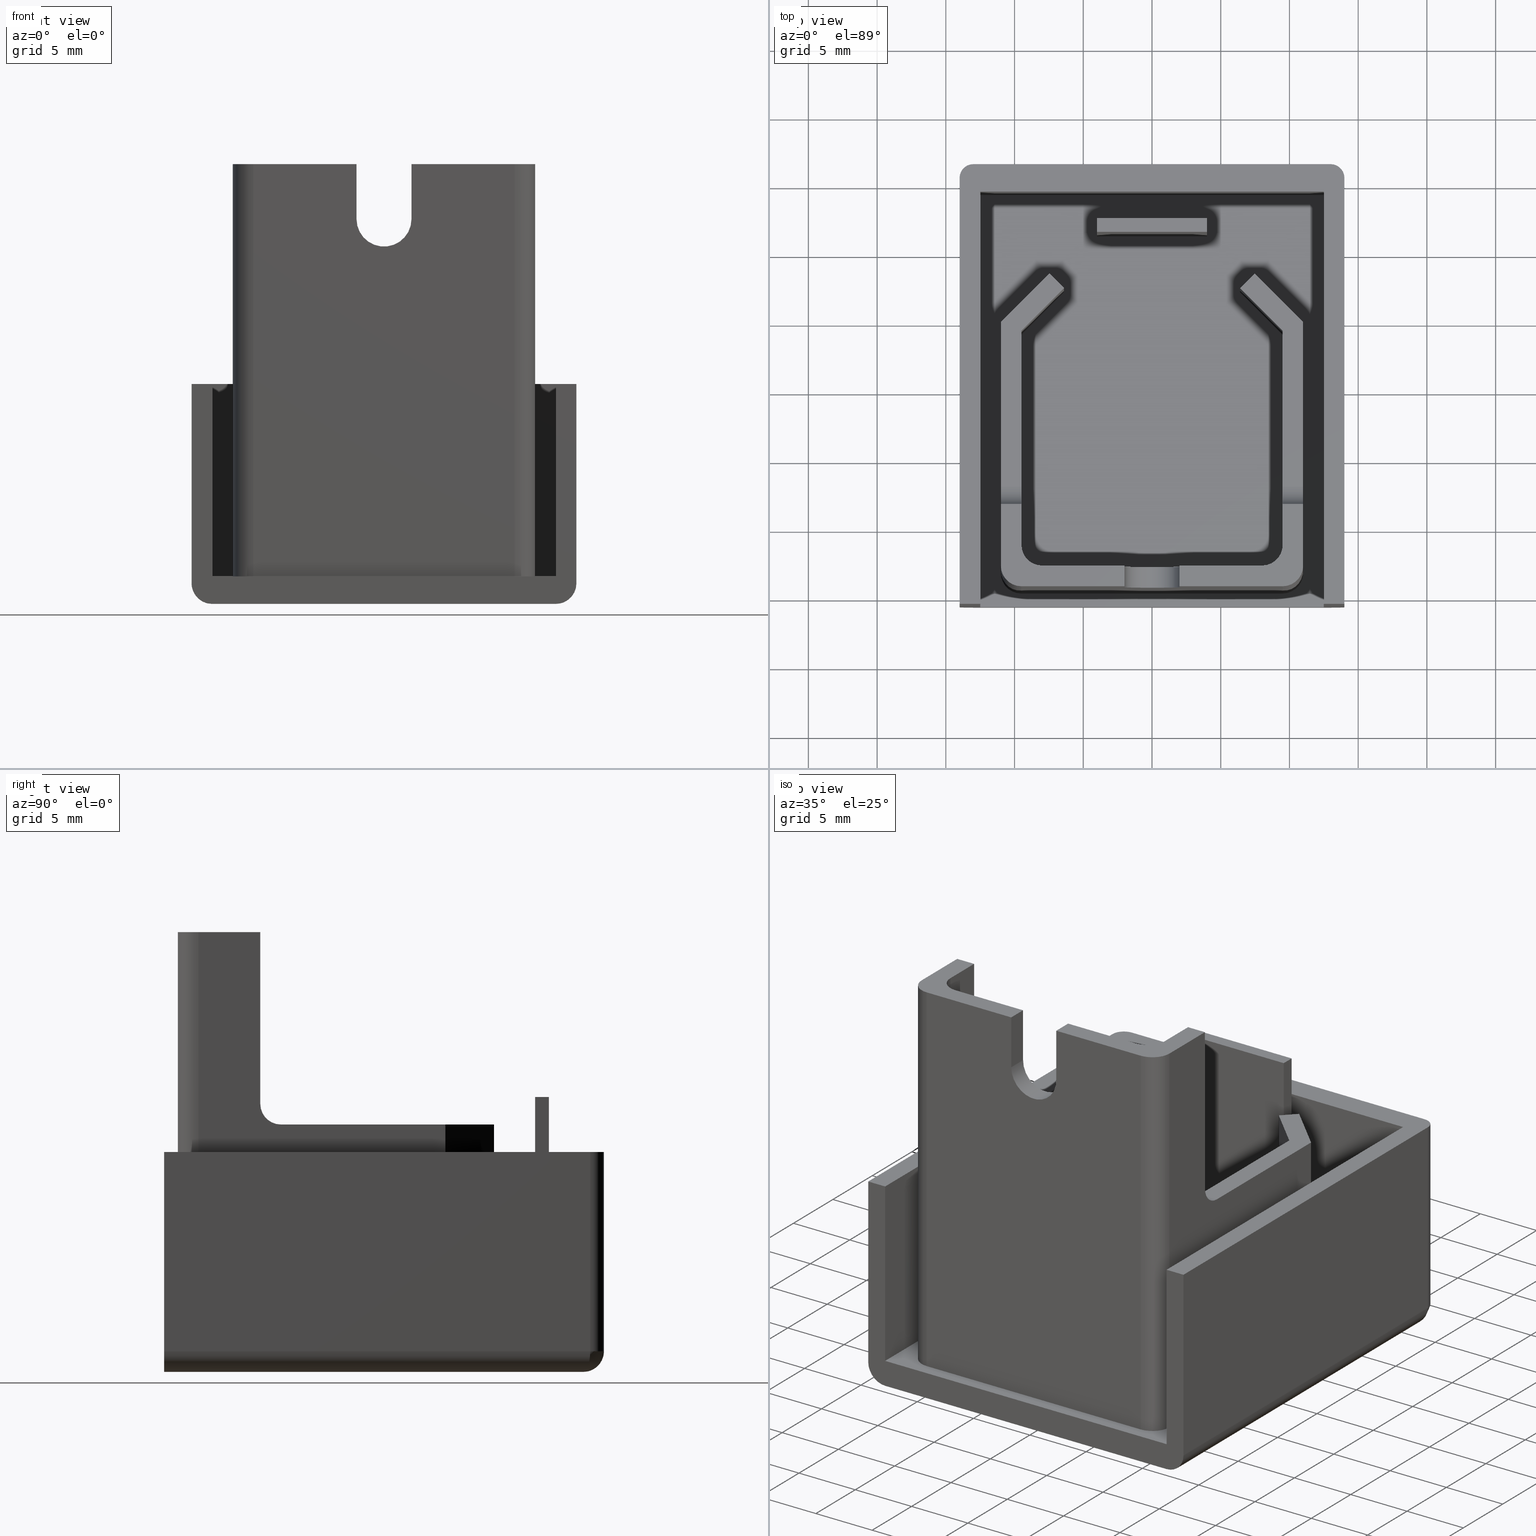
[diagram: canonical four-view strip — front | top / right | iso, engineering-drawing reading convention]
A machine part, canonical four-view strip (front | top / right | iso — engineering-drawing reading convention). The complete STEP part file that produces these views, byte-faithful:
ISO-10303-21;
HEADER;
/* Generated by software containing ST-Developer
 * from STEP Tools, Inc. (www.steptools.com) 
 */

FILE_DESCRIPTION(
/* description */ ('TAPPO CANALA 25x30G'),
/* implementation_level */ '2;1');

FILE_NAME(
/* name */ 
'Q:\\Catalogo\\3_Profili e accessori MACAP\\Per Download Web e catalog
o artaceo\\ACCESSORI\\PAGINA 66\\CMEAA0000012-XE70225G.stp',
/* time_stamp */ '2018-02-28T15:37:33+01:00',
/* author */ ('fzagni'),
/* organization */ (''),
/* preprocessor_version */ 'ST-DEVELOPER v16.1',
/* originating_system */ 'Autodesk Inventor 2016',
/* authorisation */ '');

FILE_SCHEMA (('AUTOMOTIVE_DESIGN { 1 0 10303 214 3 1 1 }'));
ENDSEC;

DATA;
#10=MECHANICAL_DESIGN_GEOMETRIC_PRESENTATION_REPRESENTATION('',(#13),#1566);
#11=SHAPE_REPRESENTATION_RELATIONSHIP('SRR','None',#1575,#12);
#12=ADVANCED_BREP_SHAPE_REPRESENTATION('',(#14),#1565);
#13=STYLED_ITEM('',(#1584),#14);
#14=MANIFOLD_SOLID_BREP('Solido1',#920);
#15=FACE_BOUND('',#343,.T.);
#16=FACE_BOUND('',#344,.T.);
#17=PLANE('',#933);
#18=PLANE('',#934);
#19=PLANE('',#935);
#20=PLANE('',#936);
#21=PLANE('',#937);
#22=PLANE('',#938);
#23=PLANE('',#939);
#24=PLANE('',#943);
#25=PLANE('',#944);
#26=PLANE('',#945);
#27=PLANE('',#946);
#28=PLANE('',#949);
#29=PLANE('',#953);
#30=PLANE('',#959);
#31=PLANE('',#961);
#32=PLANE('',#964);
#33=PLANE('',#967);
#34=PLANE('',#971);
#35=PLANE('',#972);
#36=PLANE('',#973);
#37=PLANE('',#974);
#38=PLANE('',#975);
#39=PLANE('',#976);
#40=PLANE('',#977);
#41=PLANE('',#978);
#42=PLANE('',#979);
#43=PLANE('',#980);
#44=PLANE('',#981);
#45=PLANE('',#982);
#46=PLANE('',#983);
#47=PLANE('',#984);
#48=PLANE('',#987);
#49=PLANE('',#990);
#50=PLANE('',#991);
#51=PLANE('',#992);
#52=LINE('',#1317,#157);
#53=LINE('',#1320,#158);
#54=LINE('',#1322,#159);
#55=LINE('',#1323,#160);
#56=LINE('',#1326,#161);
#57=LINE('',#1329,#162);
#58=LINE('',#1331,#163);
#59=LINE('',#1334,#164);
#60=LINE('',#1336,#165);
#61=LINE('',#1338,#166);
#62=LINE('',#1340,#167);
#63=LINE('',#1342,#168);
#64=LINE('',#1344,#169);
#65=LINE('',#1345,#170);
#66=LINE('',#1349,#171);
#67=LINE('',#1351,#172);
#68=LINE('',#1353,#173);
#69=LINE('',#1354,#174);
#70=LINE('',#1357,#175);
#71=LINE('',#1359,#176);
#72=LINE('',#1360,#177);
#73=LINE('',#1363,#178);
#74=LINE('',#1365,#179);
#75=LINE('',#1366,#180);
#76=LINE('',#1368,#181);
#77=LINE('',#1369,#182);
#78=LINE('',#1376,#183);
#79=LINE('',#1379,#184);
#80=LINE('',#1382,#185);
#81=LINE('',#1384,#186);
#82=LINE('',#1385,#187);
#83=LINE('',#1388,#188);
#84=LINE('',#1390,#189);
#85=LINE('',#1391,#190);
#86=LINE('',#1394,#191);
#87=LINE('',#1396,#192);
#88=LINE('',#1398,#193);
#89=LINE('',#1400,#194);
#90=LINE('',#1401,#195);
#91=LINE('',#1404,#196);
#92=LINE('',#1408,#197);
#93=LINE('',#1410,#198);
#94=LINE('',#1412,#199);
#95=LINE('',#1416,#200);
#96=LINE('',#1418,#201);
#97=LINE('',#1420,#202);
#98=LINE('',#1421,#203);
#99=LINE('',#1426,#204);
#100=LINE('',#1431,#205);
#101=LINE('',#1432,#206);
#102=LINE('',#1433,#207);
#103=LINE('',#1437,#208);
#104=LINE('',#1439,#209);
#105=LINE('',#1441,#210);
#106=LINE('',#1443,#211);
#107=LINE('',#1445,#212);
#108=LINE('',#1450,#213);
#109=LINE('',#1452,#214);
#110=LINE('',#1454,#215);
#111=LINE('',#1456,#216);
#112=LINE('',#1457,#217);
#113=LINE('',#1461,#218);
#114=LINE('',#1464,#219);
#115=LINE('',#1466,#220);
#116=LINE('',#1467,#221);
#117=LINE('',#1469,#222);
#118=LINE('',#1472,#223);
#119=LINE('',#1474,#224);
#120=LINE('',#1477,#225);
#121=LINE('',#1479,#226);
#122=LINE('',#1482,#227);
#123=LINE('',#1486,#228);
#124=LINE('',#1487,#229);
#125=LINE('',#1489,#230);
#126=LINE('',#1490,#231);
#127=LINE('',#1497,#232);
#128=LINE('',#1500,#233);
#129=LINE('',#1502,#234);
#130=LINE('',#1503,#235);
#131=LINE('',#1506,#236);
#132=LINE('',#1507,#237);
#133=LINE('',#1510,#238);
#134=LINE('',#1511,#239);
#135=LINE('',#1513,#240);
#136=LINE('',#1517,#241);
#137=LINE('',#1518,#242);
#138=LINE('',#1521,#243);
#139=LINE('',#1522,#244);
#140=LINE('',#1525,#245);
#141=LINE('',#1526,#246);
#142=LINE('',#1529,#247);
#143=LINE('',#1530,#248);
#144=LINE('',#1532,#249);
#145=LINE('',#1536,#250);
#146=LINE('',#1537,#251);
#147=LINE('',#1540,#252);
#148=LINE('',#1541,#253);
#149=LINE('',#1543,#254);
#150=LINE('',#1546,#255);
#151=LINE('',#1549,#256);
#152=LINE('',#1552,#257);
#153=LINE('',#1553,#258);
#154=LINE('',#1557,#259);
#155=LINE('',#1559,#260);
#156=LINE('',#1561,#261);
#157=VECTOR('',#1009,30.5);
#158=VECTOR('',#1012,31.);
#159=VECTOR('',#1015,25.);
#160=VECTOR('',#1016,26.);
#161=VECTOR('',#1019,31.);
#162=VECTOR('',#1022,30.5);
#163=VECTOR('',#1025,25.);
#164=VECTOR('',#1028,14.5);
#165=VECTOR('',#1029,1.49999999999999);
#166=VECTOR('',#1030,14.);
#167=VECTOR('',#1031,25.);
#168=VECTOR('',#1032,14.);
#169=VECTOR('',#1033,1.50000000000001);
#170=VECTOR('',#1034,14.5);
#171=VECTOR('',#1037,0.999999999999996);
#172=VECTOR('',#1038,18.);
#173=VECTOR('',#1039,0.999999999999996);
#174=VECTOR('',#1040,18.);
#175=VECTOR('',#1043,8.);
#176=VECTOR('',#1044,8.);
#177=VECTOR('',#1045,18.);
#178=VECTOR('',#1048,1.);
#179=VECTOR('',#1049,1.);
#180=VECTOR('',#1050,18.);
#181=VECTOR('',#1053,8.);
#182=VECTOR('',#1054,8.);
#183=VECTOR('',#1061,1.5);
#184=VECTOR('',#1064,1.5);
#185=VECTOR('',#1067,4.);
#186=VECTOR('',#1068,4.);
#187=VECTOR('',#1069,1.5);
#188=VECTOR('',#1072,4.);
#189=VECTOR('',#1073,1.5);
#190=VECTOR('',#1074,4.);
#191=VECTOR('',#1077,6.);
#192=VECTOR('',#1078,30.);
#193=VECTOR('',#1079,16.);
#194=VECTOR('',#1080,30.);
#195=VECTOR('',#1081,6.00000000000001);
#196=VECTOR('',#1084,7.5);
#197=VECTOR('',#1087,4.50000000000003);
#198=VECTOR('',#1088,1.5);
#199=VECTOR('',#1089,3.00000000000002);
#200=VECTOR('',#1094,7.5);
#201=VECTOR('',#1095,30.);
#202=VECTOR('',#1096,19.);
#203=VECTOR('',#1097,30.);
#204=VECTOR('',#1102,30.);
#205=VECTOR('',#1107,25.);
#206=VECTOR('',#1108,30.);
#207=VECTOR('',#1109,30.);
#208=VECTOR('',#1112,15.8431457505076);
#209=VECTOR('',#1113,4.37867965644038);
#210=VECTOR('',#1114,1.50000000000001);
#211=VECTOR('',#1115,5.);
#212=VECTOR('',#1116,17.9644660940673);
#213=VECTOR('',#1121,17.9644660940673);
#214=VECTOR('',#1122,4.99999999999999);
#215=VECTOR('',#1123,1.5);
#216=VECTOR('',#1124,4.37867965644037);
#217=VECTOR('',#1125,15.8431457505076);
#218=VECTOR('',#1130,30.);
#219=VECTOR('',#1133,2.99999999999999);
#220=VECTOR('',#1134,1.49999999999999);
#221=VECTOR('',#1135,4.49999999999998);
#222=VECTOR('',#1138,30.);
#223=VECTOR('',#1141,16.);
#224=VECTOR('',#1142,11.9644660940672);
#225=VECTOR('',#1145,12.5);
#226=VECTOR('',#1148,30.);
#227=VECTOR('',#1151,12.5);
#228=VECTOR('',#1154,11.3431457505076);
#229=VECTOR('',#1155,16.);
#230=VECTOR('',#1158,1.5);
#231=VECTOR('',#1159,1.5);
#232=VECTOR('',#1166,1.49999999999999);
#233=VECTOR('',#1169,1.49999999999999);
#234=VECTOR('',#1172,12.5);
#235=VECTOR('',#1173,12.5);
#236=VECTOR('',#1176,4.37867965644038);
#237=VECTOR('',#1177,16.);
#238=VECTOR('',#1180,1.50000000000001);
#239=VECTOR('',#1181,16.);
#240=VECTOR('',#1184,5.);
#241=VECTOR('',#1189,11.9644660940673);
#242=VECTOR('',#1190,16.);
#243=VECTOR('',#1193,4.99999999999999);
#244=VECTOR('',#1194,16.);
#245=VECTOR('',#1197,1.5);
#246=VECTOR('',#1198,16.);
#247=VECTOR('',#1201,4.37867965644037);
#248=VECTOR('',#1202,16.);
#249=VECTOR('',#1205,11.3431457505076);
#250=VECTOR('',#1210,30.);
#251=VECTOR('',#1211,14.);
#252=VECTOR('',#1214,30.);
#253=VECTOR('',#1215,14.);
#254=VECTOR('',#1218,25.);
#255=VECTOR('',#1221,14.5);
#256=VECTOR('',#1224,14.5);
#257=VECTOR('',#1227,26.);
#258=VECTOR('',#1228,14.5);
#259=VECTOR('',#1233,14.5);
#260=VECTOR('',#1236,31.);
#261=VECTOR('',#1239,31.);
#262=CYLINDRICAL_SURFACE('',#928,1.5);
#263=CYLINDRICAL_SURFACE('',#930,1.5);
#264=CYLINDRICAL_SURFACE('',#931,1.5);
#265=CYLINDRICAL_SURFACE('',#940,2.);
#266=CYLINDRICAL_SURFACE('',#950,1.5);
#267=CYLINDRICAL_SURFACE('',#957,1.5);
#268=CYLINDRICAL_SURFACE('',#960,1.5);
#269=CYLINDRICAL_SURFACE('',#963,1.5);
#270=CYLINDRICAL_SURFACE('',#966,1.5);
#271=CYLINDRICAL_SURFACE('',#968,1.5);
#272=CYLINDRICAL_SURFACE('',#985,1.);
#273=CYLINDRICAL_SURFACE('',#988,1.);
#274=FACE_OUTER_BOUND('',#323,.T.);
#275=FACE_OUTER_BOUND('',#324,.T.);
#276=FACE_OUTER_BOUND('',#325,.T.);
#277=FACE_OUTER_BOUND('',#326,.T.);
#278=FACE_OUTER_BOUND('',#327,.T.);
#279=FACE_OUTER_BOUND('',#328,.T.);
#280=FACE_OUTER_BOUND('',#329,.T.);
#281=FACE_OUTER_BOUND('',#330,.T.);
#282=FACE_OUTER_BOUND('',#331,.T.);
#283=FACE_OUTER_BOUND('',#332,.T.);
#284=FACE_OUTER_BOUND('',#333,.T.);
#285=FACE_OUTER_BOUND('',#334,.T.);
#286=FACE_OUTER_BOUND('',#335,.T.);
#287=FACE_OUTER_BOUND('',#336,.T.);
#288=FACE_OUTER_BOUND('',#337,.T.);
#289=FACE_OUTER_BOUND('',#338,.T.);
#290=FACE_OUTER_BOUND('',#339,.T.);
#291=FACE_OUTER_BOUND('',#340,.T.);
#292=FACE_OUTER_BOUND('',#341,.T.);
#293=FACE_OUTER_BOUND('',#342,.T.);
#294=FACE_OUTER_BOUND('',#345,.T.);
#295=FACE_OUTER_BOUND('',#346,.T.);
#296=FACE_OUTER_BOUND('',#347,.T.);
#297=FACE_OUTER_BOUND('',#348,.T.);
#298=FACE_OUTER_BOUND('',#349,.T.);
#299=FACE_OUTER_BOUND('',#350,.T.);
#300=FACE_OUTER_BOUND('',#351,.T.);
#301=FACE_OUTER_BOUND('',#352,.T.);
#302=FACE_OUTER_BOUND('',#353,.T.);
#303=FACE_OUTER_BOUND('',#354,.T.);
#304=FACE_OUTER_BOUND('',#355,.T.);
#305=FACE_OUTER_BOUND('',#356,.T.);
#306=FACE_OUTER_BOUND('',#357,.T.);
#307=FACE_OUTER_BOUND('',#358,.T.);
#308=FACE_OUTER_BOUND('',#359,.T.);
#309=FACE_OUTER_BOUND('',#360,.T.);
#310=FACE_OUTER_BOUND('',#361,.T.);
#311=FACE_OUTER_BOUND('',#362,.T.);
#312=FACE_OUTER_BOUND('',#363,.T.);
#313=FACE_OUTER_BOUND('',#364,.T.);
#314=FACE_OUTER_BOUND('',#365,.T.);
#315=FACE_OUTER_BOUND('',#366,.T.);
#316=FACE_OUTER_BOUND('',#367,.T.);
#317=FACE_OUTER_BOUND('',#368,.T.);
#318=FACE_OUTER_BOUND('',#369,.T.);
#319=FACE_OUTER_BOUND('',#370,.T.);
#320=FACE_OUTER_BOUND('',#371,.T.);
#321=FACE_OUTER_BOUND('',#372,.T.);
#322=FACE_OUTER_BOUND('',#373,.T.);
#323=EDGE_LOOP('',(#611,#612,#613));
#324=EDGE_LOOP('',(#614,#615,#616));
#325=EDGE_LOOP('',(#617,#618,#619,#620));
#326=EDGE_LOOP('',(#621,#622,#623,#624));
#327=EDGE_LOOP('',(#625,#626,#627,#628));
#328=EDGE_LOOP('',(#629,#630,#631,#632));
#329=EDGE_LOOP('',(#633,#634,#635,#636,#637,#638,#639,#640,#641,#642));
#330=EDGE_LOOP('',(#643,#644,#645,#646));
#331=EDGE_LOOP('',(#647,#648,#649,#650));
#332=EDGE_LOOP('',(#651,#652,#653,#654));
#333=EDGE_LOOP('',(#655,#656,#657,#658));
#334=EDGE_LOOP('',(#659,#660,#661,#662));
#335=EDGE_LOOP('',(#663,#664,#665,#666));
#336=EDGE_LOOP('',(#667,#668,#669,#670));
#337=EDGE_LOOP('',(#671,#672,#673,#674));
#338=EDGE_LOOP('',(#675,#676,#677,#678,#679,#680,#681,#682));
#339=EDGE_LOOP('',(#683,#684,#685,#686,#687,#688,#689,#690));
#340=EDGE_LOOP('',(#691,#692,#693,#694,#695,#696,#697,#698));
#341=EDGE_LOOP('',(#699,#700,#701,#702));
#342=EDGE_LOOP('',(#703,#704,#705,#706));
#343=EDGE_LOOP('',(#707,#708,#709,#710));
#344=EDGE_LOOP('',(#711,#712,#713,#714,#715,#716,#717,#718,#719,#720,#721,
#722,#723,#724,#725,#726));
#345=EDGE_LOOP('',(#727,#728,#729,#730));
#346=EDGE_LOOP('',(#731,#732,#733,#734,#735,#736,#737,#738));
#347=EDGE_LOOP('',(#739,#740,#741,#742));
#348=EDGE_LOOP('',(#743,#744,#745,#746,#747,#748,#749));
#349=EDGE_LOOP('',(#750,#751,#752,#753));
#350=EDGE_LOOP('',(#754,#755,#756,#757,#758,#759,#760));
#351=EDGE_LOOP('',(#761,#762,#763,#764));
#352=EDGE_LOOP('',(#765,#766,#767,#768));
#353=EDGE_LOOP('',(#769,#770,#771,#772));
#354=EDGE_LOOP('',(#773,#774,#775,#776));
#355=EDGE_LOOP('',(#777,#778,#779,#780));
#356=EDGE_LOOP('',(#781,#782,#783,#784));
#357=EDGE_LOOP('',(#785,#786,#787,#788));
#358=EDGE_LOOP('',(#789,#790,#791,#792,#793,#794));
#359=EDGE_LOOP('',(#795,#796,#797,#798,#799,#800,#801));
#360=EDGE_LOOP('',(#802,#803,#804,#805));
#361=EDGE_LOOP('',(#806,#807,#808,#809));
#362=EDGE_LOOP('',(#810,#811,#812,#813));
#363=EDGE_LOOP('',(#814,#815,#816,#817,#818,#819,#820));
#364=EDGE_LOOP('',(#821,#822,#823,#824,#825,#826));
#365=EDGE_LOOP('',(#827,#828,#829,#830));
#366=EDGE_LOOP('',(#831,#832,#833,#834));
#367=EDGE_LOOP('',(#835,#836,#837,#838));
#368=EDGE_LOOP('',(#839,#840,#841,#842));
#369=EDGE_LOOP('',(#843,#844,#845,#846));
#370=EDGE_LOOP('',(#847,#848,#849,#850));
#371=EDGE_LOOP('',(#851,#852,#853,#854));
#372=EDGE_LOOP('',(#855,#856,#857,#858));
#373=EDGE_LOOP('',(#859,#860,#861,#862,#863,#864,#865,#866,#867,#868));
#374=CIRCLE('',#924,0.999999999999999);
#375=CIRCLE('',#927,0.999999999999999);
#376=CIRCLE('',#929,1.5);
#377=CIRCLE('',#932,1.5);
#378=CIRCLE('',#941,2.);
#379=CIRCLE('',#942,2.);
#380=CIRCLE('',#947,1.5);
#381=CIRCLE('',#948,1.5);
#382=CIRCLE('',#951,1.5);
#383=CIRCLE('',#952,1.5);
#384=CIRCLE('',#954,1.5);
#385=CIRCLE('',#955,1.5);
#386=CIRCLE('',#956,1.5);
#387=CIRCLE('',#958,1.5);
#388=CIRCLE('',#962,1.5);
#389=CIRCLE('',#965,1.5);
#390=CIRCLE('',#969,1.5);
#391=CIRCLE('',#970,1.5);
#392=CIRCLE('',#986,1.);
#393=CIRCLE('',#989,1.);
#394=ELLIPSE('',#922,1.58113883008419,1.5);
#395=ELLIPSE('',#923,1.58113883008419,1.5);
#396=ELLIPSE('',#925,1.58113883008419,1.5);
#397=ELLIPSE('',#926,1.58113883008419,1.5);
#398=VERTEX_POINT('',#1273);
#399=VERTEX_POINT('',#1274);
#400=VERTEX_POINT('',#1276);
#401=VERTEX_POINT('',#1309);
#402=VERTEX_POINT('',#1310);
#403=VERTEX_POINT('',#1312);
#404=VERTEX_POINT('',#1316);
#405=VERTEX_POINT('',#1318);
#406=VERTEX_POINT('',#1325);
#407=VERTEX_POINT('',#1327);
#408=VERTEX_POINT('',#1333);
#409=VERTEX_POINT('',#1335);
#410=VERTEX_POINT('',#1337);
#411=VERTEX_POINT('',#1339);
#412=VERTEX_POINT('',#1341);
#413=VERTEX_POINT('',#1343);
#414=VERTEX_POINT('',#1347);
#415=VERTEX_POINT('',#1348);
#416=VERTEX_POINT('',#1350);
#417=VERTEX_POINT('',#1352);
#418=VERTEX_POINT('',#1356);
#419=VERTEX_POINT('',#1358);
#420=VERTEX_POINT('',#1362);
#421=VERTEX_POINT('',#1364);
#422=VERTEX_POINT('',#1372);
#423=VERTEX_POINT('',#1373);
#424=VERTEX_POINT('',#1375);
#425=VERTEX_POINT('',#1377);
#426=VERTEX_POINT('',#1381);
#427=VERTEX_POINT('',#1383);
#428=VERTEX_POINT('',#1387);
#429=VERTEX_POINT('',#1389);
#430=VERTEX_POINT('',#1393);
#431=VERTEX_POINT('',#1395);
#432=VERTEX_POINT('',#1397);
#433=VERTEX_POINT('',#1399);
#434=VERTEX_POINT('',#1403);
#435=VERTEX_POINT('',#1405);
#436=VERTEX_POINT('',#1407);
#437=VERTEX_POINT('',#1409);
#438=VERTEX_POINT('',#1411);
#439=VERTEX_POINT('',#1415);
#440=VERTEX_POINT('',#1417);
#441=VERTEX_POINT('',#1419);
#442=VERTEX_POINT('',#1423);
#443=VERTEX_POINT('',#1425);
#444=VERTEX_POINT('',#1429);
#445=VERTEX_POINT('',#1430);
#446=VERTEX_POINT('',#1434);
#447=VERTEX_POINT('',#1436);
#448=VERTEX_POINT('',#1438);
#449=VERTEX_POINT('',#1440);
#450=VERTEX_POINT('',#1442);
#451=VERTEX_POINT('',#1444);
#452=VERTEX_POINT('',#1447);
#453=VERTEX_POINT('',#1449);
#454=VERTEX_POINT('',#1451);
#455=VERTEX_POINT('',#1453);
#456=VERTEX_POINT('',#1455);
#457=VERTEX_POINT('',#1459);
#458=VERTEX_POINT('',#1463);
#459=VERTEX_POINT('',#1465);
#460=VERTEX_POINT('',#1471);
#461=VERTEX_POINT('',#1473);
#462=VERTEX_POINT('',#1475);
#463=VERTEX_POINT('',#1481);
#464=VERTEX_POINT('',#1483);
#465=VERTEX_POINT('',#1485);
#466=VERTEX_POINT('',#1493);
#467=VERTEX_POINT('',#1494);
#468=VERTEX_POINT('',#1496);
#469=VERTEX_POINT('',#1498);
#470=VERTEX_POINT('',#1505);
#471=VERTEX_POINT('',#1509);
#472=VERTEX_POINT('',#1516);
#473=VERTEX_POINT('',#1520);
#474=VERTEX_POINT('',#1524);
#475=VERTEX_POINT('',#1528);
#476=VERTEX_POINT('',#1535);
#477=VERTEX_POINT('',#1539);
#478=VERTEX_POINT('',#1545);
#479=VERTEX_POINT('',#1547);
#480=VERTEX_POINT('',#1551);
#481=VERTEX_POINT('',#1555);
#482=EDGE_CURVE('',#398,#399,#394,.T.);
#483=EDGE_CURVE('',#399,#400,#395,.T.);
#484=EDGE_CURVE('',#400,#398,#374,.T.);
#485=EDGE_CURVE('',#401,#402,#396,.T.);
#486=EDGE_CURVE('',#402,#403,#397,.T.);
#487=EDGE_CURVE('',#403,#401,#375,.T.);
#488=EDGE_CURVE('',#402,#404,#52,.T.);
#489=EDGE_CURVE('',#404,#405,#376,.T.);
#490=EDGE_CURVE('',#405,#403,#53,.T.);
#491=EDGE_CURVE('',#399,#402,#54,.T.);
#492=EDGE_CURVE('',#401,#400,#55,.T.);
#493=EDGE_CURVE('',#398,#406,#56,.T.);
#494=EDGE_CURVE('',#406,#407,#377,.T.);
#495=EDGE_CURVE('',#407,#399,#57,.T.);
#496=EDGE_CURVE('',#407,#404,#58,.T.);
#497=EDGE_CURVE('',#406,#408,#59,.T.);
#498=EDGE_CURVE('',#409,#408,#60,.T.);
#499=EDGE_CURVE('',#409,#410,#61,.T.);
#500=EDGE_CURVE('',#410,#411,#62,.T.);
#501=EDGE_CURVE('',#411,#412,#63,.T.);
#502=EDGE_CURVE('',#413,#412,#64,.T.);
#503=EDGE_CURVE('',#405,#413,#65,.T.);
#504=EDGE_CURVE('',#414,#415,#66,.T.);
#505=EDGE_CURVE('',#414,#416,#67,.T.);
#506=EDGE_CURVE('',#417,#416,#68,.T.);
#507=EDGE_CURVE('',#415,#417,#69,.T.);
#508=EDGE_CURVE('',#415,#418,#70,.T.);
#509=EDGE_CURVE('',#419,#417,#71,.T.);
#510=EDGE_CURVE('',#418,#419,#72,.T.);
#511=EDGE_CURVE('',#418,#420,#73,.T.);
#512=EDGE_CURVE('',#421,#419,#74,.T.);
#513=EDGE_CURVE('',#420,#421,#75,.T.);
#514=EDGE_CURVE('',#420,#414,#76,.T.);
#515=EDGE_CURVE('',#416,#421,#77,.T.);
#516=EDGE_CURVE('',#422,#423,#378,.T.);
#517=EDGE_CURVE('',#424,#422,#78,.T.);
#518=EDGE_CURVE('',#425,#424,#379,.T.);
#519=EDGE_CURVE('',#425,#423,#79,.T.);
#520=EDGE_CURVE('',#423,#426,#80,.T.);
#521=EDGE_CURVE('',#427,#425,#81,.T.);
#522=EDGE_CURVE('',#426,#427,#82,.T.);
#523=EDGE_CURVE('',#428,#422,#83,.T.);
#524=EDGE_CURVE('',#429,#428,#84,.T.);
#525=EDGE_CURVE('',#424,#429,#85,.T.);
#526=EDGE_CURVE('',#430,#429,#86,.T.);
#527=EDGE_CURVE('',#431,#430,#87,.T.);
#528=EDGE_CURVE('',#432,#431,#88,.T.);
#529=EDGE_CURVE('',#433,#432,#89,.T.);
#530=EDGE_CURVE('',#427,#433,#90,.T.);
#531=EDGE_CURVE('',#428,#434,#91,.T.);
#532=EDGE_CURVE('',#435,#434,#380,.T.);
#533=EDGE_CURVE('',#435,#436,#92,.T.);
#534=EDGE_CURVE('',#436,#437,#93,.T.);
#535=EDGE_CURVE('',#437,#438,#94,.T.);
#536=EDGE_CURVE('',#430,#438,#381,.T.);
#537=EDGE_CURVE('',#439,#426,#95,.T.);
#538=EDGE_CURVE('',#440,#439,#96,.T.);
#539=EDGE_CURVE('',#441,#440,#97,.T.);
#540=EDGE_CURVE('',#434,#441,#98,.T.);
#541=EDGE_CURVE('',#442,#432,#382,.T.);
#542=EDGE_CURVE('',#442,#443,#99,.T.);
#543=EDGE_CURVE('',#443,#433,#383,.T.);
#544=EDGE_CURVE('',#444,#445,#100,.T.);
#545=EDGE_CURVE('',#411,#444,#101,.T.);
#546=EDGE_CURVE('',#445,#410,#102,.T.);
#547=EDGE_CURVE('',#431,#446,#384,.T.);
#548=EDGE_CURVE('',#446,#447,#103,.T.);
#549=EDGE_CURVE('',#447,#448,#104,.T.);
#550=EDGE_CURVE('',#448,#449,#105,.T.);
#551=EDGE_CURVE('',#449,#450,#106,.T.);
#552=EDGE_CURVE('',#450,#451,#107,.T.);
#553=EDGE_CURVE('',#441,#451,#385,.F.);
#554=EDGE_CURVE('',#452,#440,#386,.F.);
#555=EDGE_CURVE('',#452,#453,#108,.T.);
#556=EDGE_CURVE('',#453,#454,#109,.T.);
#557=EDGE_CURVE('',#454,#455,#110,.T.);
#558=EDGE_CURVE('',#455,#456,#111,.T.);
#559=EDGE_CURVE('',#456,#442,#112,.T.);
#560=EDGE_CURVE('',#439,#457,#387,.T.);
#561=EDGE_CURVE('',#457,#452,#113,.T.);
#562=EDGE_CURVE('',#443,#458,#114,.T.);
#563=EDGE_CURVE('',#458,#459,#115,.T.);
#564=EDGE_CURVE('',#459,#457,#116,.T.);
#565=EDGE_CURVE('',#451,#435,#117,.T.);
#566=EDGE_CURVE('',#450,#460,#118,.T.);
#567=EDGE_CURVE('',#461,#460,#119,.T.);
#568=EDGE_CURVE('',#462,#461,#388,.T.);
#569=EDGE_CURVE('',#462,#436,#120,.T.);
#570=EDGE_CURVE('',#438,#446,#121,.T.);
#571=EDGE_CURVE('',#463,#437,#122,.T.);
#572=EDGE_CURVE('',#464,#463,#389,.T.);
#573=EDGE_CURVE('',#465,#464,#123,.T.);
#574=EDGE_CURVE('',#447,#465,#124,.T.);
#575=EDGE_CURVE('',#463,#462,#125,.T.);
#576=EDGE_CURVE('',#461,#464,#126,.T.);
#577=EDGE_CURVE('',#466,#467,#390,.T.);
#578=EDGE_CURVE('',#467,#468,#127,.T.);
#579=EDGE_CURVE('',#468,#469,#391,.T.);
#580=EDGE_CURVE('',#469,#466,#128,.T.);
#581=EDGE_CURVE('',#467,#459,#129,.T.);
#582=EDGE_CURVE('',#468,#458,#130,.T.);
#583=EDGE_CURVE('',#470,#465,#131,.T.);
#584=EDGE_CURVE('',#448,#470,#132,.T.);
#585=EDGE_CURVE('',#471,#470,#133,.T.);
#586=EDGE_CURVE('',#449,#471,#134,.T.);
#587=EDGE_CURVE('',#460,#471,#135,.T.);
#588=EDGE_CURVE('',#472,#466,#136,.T.);
#589=EDGE_CURVE('',#453,#472,#137,.T.);
#590=EDGE_CURVE('',#473,#472,#138,.T.);
#591=EDGE_CURVE('',#454,#473,#139,.T.);
#592=EDGE_CURVE('',#474,#473,#140,.T.);
#593=EDGE_CURVE('',#455,#474,#141,.T.);
#594=EDGE_CURVE('',#475,#474,#142,.T.);
#595=EDGE_CURVE('',#456,#475,#143,.T.);
#596=EDGE_CURVE('',#469,#475,#144,.T.);
#597=EDGE_CURVE('',#412,#476,#145,.T.);
#598=EDGE_CURVE('',#476,#444,#146,.T.);
#599=EDGE_CURVE('',#477,#409,#147,.T.);
#600=EDGE_CURVE('',#477,#445,#148,.T.);
#601=EDGE_CURVE('',#476,#477,#149,.T.);
#602=EDGE_CURVE('',#478,#403,#150,.T.);
#603=EDGE_CURVE('',#479,#478,#392,.T.);
#604=EDGE_CURVE('',#401,#479,#151,.T.);
#605=EDGE_CURVE('',#480,#479,#152,.T.);
#606=EDGE_CURVE('',#400,#480,#153,.T.);
#607=EDGE_CURVE('',#481,#480,#393,.T.);
#608=EDGE_CURVE('',#398,#481,#154,.T.);
#609=EDGE_CURVE('',#408,#481,#155,.T.);
#610=EDGE_CURVE('',#478,#413,#156,.T.);
#611=ORIENTED_EDGE('',*,*,#482,.T.);
#612=ORIENTED_EDGE('',*,*,#483,.T.);
#613=ORIENTED_EDGE('',*,*,#484,.T.);
#614=ORIENTED_EDGE('',*,*,#485,.T.);
#615=ORIENTED_EDGE('',*,*,#486,.T.);
#616=ORIENTED_EDGE('',*,*,#487,.T.);
#617=ORIENTED_EDGE('',*,*,#486,.F.);
#618=ORIENTED_EDGE('',*,*,#488,.T.);
#619=ORIENTED_EDGE('',*,*,#489,.T.);
#620=ORIENTED_EDGE('',*,*,#490,.T.);
#621=ORIENTED_EDGE('',*,*,#483,.F.);
#622=ORIENTED_EDGE('',*,*,#491,.T.);
#623=ORIENTED_EDGE('',*,*,#485,.F.);
#624=ORIENTED_EDGE('',*,*,#492,.T.);
#625=ORIENTED_EDGE('',*,*,#482,.F.);
#626=ORIENTED_EDGE('',*,*,#493,.T.);
#627=ORIENTED_EDGE('',*,*,#494,.T.);
#628=ORIENTED_EDGE('',*,*,#495,.T.);
#629=ORIENTED_EDGE('',*,*,#488,.F.);
#630=ORIENTED_EDGE('',*,*,#491,.F.);
#631=ORIENTED_EDGE('',*,*,#495,.F.);
#632=ORIENTED_EDGE('',*,*,#496,.T.);
#633=ORIENTED_EDGE('',*,*,#489,.F.);
#634=ORIENTED_EDGE('',*,*,#496,.F.);
#635=ORIENTED_EDGE('',*,*,#494,.F.);
#636=ORIENTED_EDGE('',*,*,#497,.T.);
#637=ORIENTED_EDGE('',*,*,#498,.F.);
#638=ORIENTED_EDGE('',*,*,#499,.T.);
#639=ORIENTED_EDGE('',*,*,#500,.T.);
#640=ORIENTED_EDGE('',*,*,#501,.T.);
#641=ORIENTED_EDGE('',*,*,#502,.F.);
#642=ORIENTED_EDGE('',*,*,#503,.F.);
#643=ORIENTED_EDGE('',*,*,#504,.F.);
#644=ORIENTED_EDGE('',*,*,#505,.T.);
#645=ORIENTED_EDGE('',*,*,#506,.F.);
#646=ORIENTED_EDGE('',*,*,#507,.F.);
#647=ORIENTED_EDGE('',*,*,#508,.F.);
#648=ORIENTED_EDGE('',*,*,#507,.T.);
#649=ORIENTED_EDGE('',*,*,#509,.F.);
#650=ORIENTED_EDGE('',*,*,#510,.F.);
#651=ORIENTED_EDGE('',*,*,#511,.F.);
#652=ORIENTED_EDGE('',*,*,#510,.T.);
#653=ORIENTED_EDGE('',*,*,#512,.F.);
#654=ORIENTED_EDGE('',*,*,#513,.F.);
#655=ORIENTED_EDGE('',*,*,#514,.F.);
#656=ORIENTED_EDGE('',*,*,#513,.T.);
#657=ORIENTED_EDGE('',*,*,#515,.F.);
#658=ORIENTED_EDGE('',*,*,#505,.F.);
#659=ORIENTED_EDGE('',*,*,#515,.T.);
#660=ORIENTED_EDGE('',*,*,#512,.T.);
#661=ORIENTED_EDGE('',*,*,#509,.T.);
#662=ORIENTED_EDGE('',*,*,#506,.T.);
#663=ORIENTED_EDGE('',*,*,#516,.F.);
#664=ORIENTED_EDGE('',*,*,#517,.F.);
#665=ORIENTED_EDGE('',*,*,#518,.F.);
#666=ORIENTED_EDGE('',*,*,#519,.T.);
#667=ORIENTED_EDGE('',*,*,#520,.F.);
#668=ORIENTED_EDGE('',*,*,#519,.F.);
#669=ORIENTED_EDGE('',*,*,#521,.F.);
#670=ORIENTED_EDGE('',*,*,#522,.F.);
#671=ORIENTED_EDGE('',*,*,#523,.F.);
#672=ORIENTED_EDGE('',*,*,#524,.F.);
#673=ORIENTED_EDGE('',*,*,#525,.F.);
#674=ORIENTED_EDGE('',*,*,#517,.T.);
#675=ORIENTED_EDGE('',*,*,#521,.T.);
#676=ORIENTED_EDGE('',*,*,#518,.T.);
#677=ORIENTED_EDGE('',*,*,#525,.T.);
#678=ORIENTED_EDGE('',*,*,#526,.F.);
#679=ORIENTED_EDGE('',*,*,#527,.F.);
#680=ORIENTED_EDGE('',*,*,#528,.F.);
#681=ORIENTED_EDGE('',*,*,#529,.F.);
#682=ORIENTED_EDGE('',*,*,#530,.F.);
#683=ORIENTED_EDGE('',*,*,#524,.T.);
#684=ORIENTED_EDGE('',*,*,#531,.T.);
#685=ORIENTED_EDGE('',*,*,#532,.F.);
#686=ORIENTED_EDGE('',*,*,#533,.T.);
#687=ORIENTED_EDGE('',*,*,#534,.T.);
#688=ORIENTED_EDGE('',*,*,#535,.T.);
#689=ORIENTED_EDGE('',*,*,#536,.F.);
#690=ORIENTED_EDGE('',*,*,#526,.T.);
#691=ORIENTED_EDGE('',*,*,#523,.T.);
#692=ORIENTED_EDGE('',*,*,#516,.T.);
#693=ORIENTED_EDGE('',*,*,#520,.T.);
#694=ORIENTED_EDGE('',*,*,#537,.F.);
#695=ORIENTED_EDGE('',*,*,#538,.F.);
#696=ORIENTED_EDGE('',*,*,#539,.F.);
#697=ORIENTED_EDGE('',*,*,#540,.F.);
#698=ORIENTED_EDGE('',*,*,#531,.F.);
#699=ORIENTED_EDGE('',*,*,#541,.F.);
#700=ORIENTED_EDGE('',*,*,#542,.T.);
#701=ORIENTED_EDGE('',*,*,#543,.T.);
#702=ORIENTED_EDGE('',*,*,#529,.T.);
#703=ORIENTED_EDGE('',*,*,#544,.F.);
#704=ORIENTED_EDGE('',*,*,#545,.F.);
#705=ORIENTED_EDGE('',*,*,#500,.F.);
#706=ORIENTED_EDGE('',*,*,#546,.F.);
#707=ORIENTED_EDGE('',*,*,#504,.T.);
#708=ORIENTED_EDGE('',*,*,#508,.T.);
#709=ORIENTED_EDGE('',*,*,#511,.T.);
#710=ORIENTED_EDGE('',*,*,#514,.T.);
#711=ORIENTED_EDGE('',*,*,#541,.T.);
#712=ORIENTED_EDGE('',*,*,#528,.T.);
#713=ORIENTED_EDGE('',*,*,#547,.T.);
#714=ORIENTED_EDGE('',*,*,#548,.T.);
#715=ORIENTED_EDGE('',*,*,#549,.T.);
#716=ORIENTED_EDGE('',*,*,#550,.T.);
#717=ORIENTED_EDGE('',*,*,#551,.T.);
#718=ORIENTED_EDGE('',*,*,#552,.T.);
#719=ORIENTED_EDGE('',*,*,#553,.F.);
#720=ORIENTED_EDGE('',*,*,#539,.T.);
#721=ORIENTED_EDGE('',*,*,#554,.F.);
#722=ORIENTED_EDGE('',*,*,#555,.T.);
#723=ORIENTED_EDGE('',*,*,#556,.T.);
#724=ORIENTED_EDGE('',*,*,#557,.T.);
#725=ORIENTED_EDGE('',*,*,#558,.T.);
#726=ORIENTED_EDGE('',*,*,#559,.T.);
#727=ORIENTED_EDGE('',*,*,#560,.T.);
#728=ORIENTED_EDGE('',*,*,#561,.T.);
#729=ORIENTED_EDGE('',*,*,#554,.T.);
#730=ORIENTED_EDGE('',*,*,#538,.T.);
#731=ORIENTED_EDGE('',*,*,#522,.T.);
#732=ORIENTED_EDGE('',*,*,#530,.T.);
#733=ORIENTED_EDGE('',*,*,#543,.F.);
#734=ORIENTED_EDGE('',*,*,#562,.T.);
#735=ORIENTED_EDGE('',*,*,#563,.T.);
#736=ORIENTED_EDGE('',*,*,#564,.T.);
#737=ORIENTED_EDGE('',*,*,#560,.F.);
#738=ORIENTED_EDGE('',*,*,#537,.T.);
#739=ORIENTED_EDGE('',*,*,#532,.T.);
#740=ORIENTED_EDGE('',*,*,#540,.T.);
#741=ORIENTED_EDGE('',*,*,#553,.T.);
#742=ORIENTED_EDGE('',*,*,#565,.T.);
#743=ORIENTED_EDGE('',*,*,#565,.F.);
#744=ORIENTED_EDGE('',*,*,#552,.F.);
#745=ORIENTED_EDGE('',*,*,#566,.T.);
#746=ORIENTED_EDGE('',*,*,#567,.F.);
#747=ORIENTED_EDGE('',*,*,#568,.F.);
#748=ORIENTED_EDGE('',*,*,#569,.T.);
#749=ORIENTED_EDGE('',*,*,#533,.F.);
#750=ORIENTED_EDGE('',*,*,#547,.F.);
#751=ORIENTED_EDGE('',*,*,#527,.T.);
#752=ORIENTED_EDGE('',*,*,#536,.T.);
#753=ORIENTED_EDGE('',*,*,#570,.T.);
#754=ORIENTED_EDGE('',*,*,#570,.F.);
#755=ORIENTED_EDGE('',*,*,#535,.F.);
#756=ORIENTED_EDGE('',*,*,#571,.F.);
#757=ORIENTED_EDGE('',*,*,#572,.F.);
#758=ORIENTED_EDGE('',*,*,#573,.F.);
#759=ORIENTED_EDGE('',*,*,#574,.F.);
#760=ORIENTED_EDGE('',*,*,#548,.F.);
#761=ORIENTED_EDGE('',*,*,#572,.T.);
#762=ORIENTED_EDGE('',*,*,#575,.T.);
#763=ORIENTED_EDGE('',*,*,#568,.T.);
#764=ORIENTED_EDGE('',*,*,#576,.T.);
#765=ORIENTED_EDGE('',*,*,#575,.F.);
#766=ORIENTED_EDGE('',*,*,#571,.T.);
#767=ORIENTED_EDGE('',*,*,#534,.F.);
#768=ORIENTED_EDGE('',*,*,#569,.F.);
#769=ORIENTED_EDGE('',*,*,#577,.T.);
#770=ORIENTED_EDGE('',*,*,#578,.T.);
#771=ORIENTED_EDGE('',*,*,#579,.T.);
#772=ORIENTED_EDGE('',*,*,#580,.T.);
#773=ORIENTED_EDGE('',*,*,#578,.F.);
#774=ORIENTED_EDGE('',*,*,#581,.T.);
#775=ORIENTED_EDGE('',*,*,#563,.F.);
#776=ORIENTED_EDGE('',*,*,#582,.F.);
#777=ORIENTED_EDGE('',*,*,#549,.F.);
#778=ORIENTED_EDGE('',*,*,#574,.T.);
#779=ORIENTED_EDGE('',*,*,#583,.F.);
#780=ORIENTED_EDGE('',*,*,#584,.F.);
#781=ORIENTED_EDGE('',*,*,#550,.F.);
#782=ORIENTED_EDGE('',*,*,#584,.T.);
#783=ORIENTED_EDGE('',*,*,#585,.F.);
#784=ORIENTED_EDGE('',*,*,#586,.F.);
#785=ORIENTED_EDGE('',*,*,#551,.F.);
#786=ORIENTED_EDGE('',*,*,#586,.T.);
#787=ORIENTED_EDGE('',*,*,#587,.F.);
#788=ORIENTED_EDGE('',*,*,#566,.F.);
#789=ORIENTED_EDGE('',*,*,#576,.F.);
#790=ORIENTED_EDGE('',*,*,#567,.T.);
#791=ORIENTED_EDGE('',*,*,#587,.T.);
#792=ORIENTED_EDGE('',*,*,#585,.T.);
#793=ORIENTED_EDGE('',*,*,#583,.T.);
#794=ORIENTED_EDGE('',*,*,#573,.T.);
#795=ORIENTED_EDGE('',*,*,#561,.F.);
#796=ORIENTED_EDGE('',*,*,#564,.F.);
#797=ORIENTED_EDGE('',*,*,#581,.F.);
#798=ORIENTED_EDGE('',*,*,#577,.F.);
#799=ORIENTED_EDGE('',*,*,#588,.F.);
#800=ORIENTED_EDGE('',*,*,#589,.F.);
#801=ORIENTED_EDGE('',*,*,#555,.F.);
#802=ORIENTED_EDGE('',*,*,#556,.F.);
#803=ORIENTED_EDGE('',*,*,#589,.T.);
#804=ORIENTED_EDGE('',*,*,#590,.F.);
#805=ORIENTED_EDGE('',*,*,#591,.F.);
#806=ORIENTED_EDGE('',*,*,#557,.F.);
#807=ORIENTED_EDGE('',*,*,#591,.T.);
#808=ORIENTED_EDGE('',*,*,#592,.F.);
#809=ORIENTED_EDGE('',*,*,#593,.F.);
#810=ORIENTED_EDGE('',*,*,#558,.F.);
#811=ORIENTED_EDGE('',*,*,#593,.T.);
#812=ORIENTED_EDGE('',*,*,#594,.F.);
#813=ORIENTED_EDGE('',*,*,#595,.F.);
#814=ORIENTED_EDGE('',*,*,#542,.F.);
#815=ORIENTED_EDGE('',*,*,#559,.F.);
#816=ORIENTED_EDGE('',*,*,#595,.T.);
#817=ORIENTED_EDGE('',*,*,#596,.F.);
#818=ORIENTED_EDGE('',*,*,#579,.F.);
#819=ORIENTED_EDGE('',*,*,#582,.T.);
#820=ORIENTED_EDGE('',*,*,#562,.F.);
#821=ORIENTED_EDGE('',*,*,#580,.F.);
#822=ORIENTED_EDGE('',*,*,#596,.T.);
#823=ORIENTED_EDGE('',*,*,#594,.T.);
#824=ORIENTED_EDGE('',*,*,#592,.T.);
#825=ORIENTED_EDGE('',*,*,#590,.T.);
#826=ORIENTED_EDGE('',*,*,#588,.T.);
#827=ORIENTED_EDGE('',*,*,#597,.F.);
#828=ORIENTED_EDGE('',*,*,#501,.F.);
#829=ORIENTED_EDGE('',*,*,#545,.T.);
#830=ORIENTED_EDGE('',*,*,#598,.F.);
#831=ORIENTED_EDGE('',*,*,#599,.F.);
#832=ORIENTED_EDGE('',*,*,#600,.T.);
#833=ORIENTED_EDGE('',*,*,#546,.T.);
#834=ORIENTED_EDGE('',*,*,#499,.F.);
#835=ORIENTED_EDGE('',*,*,#601,.F.);
#836=ORIENTED_EDGE('',*,*,#598,.T.);
#837=ORIENTED_EDGE('',*,*,#544,.T.);
#838=ORIENTED_EDGE('',*,*,#600,.F.);
#839=ORIENTED_EDGE('',*,*,#487,.F.);
#840=ORIENTED_EDGE('',*,*,#602,.F.);
#841=ORIENTED_EDGE('',*,*,#603,.F.);
#842=ORIENTED_EDGE('',*,*,#604,.F.);
#843=ORIENTED_EDGE('',*,*,#492,.F.);
#844=ORIENTED_EDGE('',*,*,#604,.T.);
#845=ORIENTED_EDGE('',*,*,#605,.F.);
#846=ORIENTED_EDGE('',*,*,#606,.F.);
#847=ORIENTED_EDGE('',*,*,#484,.F.);
#848=ORIENTED_EDGE('',*,*,#606,.T.);
#849=ORIENTED_EDGE('',*,*,#607,.F.);
#850=ORIENTED_EDGE('',*,*,#608,.F.);
#851=ORIENTED_EDGE('',*,*,#493,.F.);
#852=ORIENTED_EDGE('',*,*,#608,.T.);
#853=ORIENTED_EDGE('',*,*,#609,.F.);
#854=ORIENTED_EDGE('',*,*,#497,.F.);
#855=ORIENTED_EDGE('',*,*,#490,.F.);
#856=ORIENTED_EDGE('',*,*,#503,.T.);
#857=ORIENTED_EDGE('',*,*,#610,.F.);
#858=ORIENTED_EDGE('',*,*,#602,.T.);
#859=ORIENTED_EDGE('',*,*,#599,.T.);
#860=ORIENTED_EDGE('',*,*,#498,.T.);
#861=ORIENTED_EDGE('',*,*,#609,.T.);
#862=ORIENTED_EDGE('',*,*,#607,.T.);
#863=ORIENTED_EDGE('',*,*,#605,.T.);
#864=ORIENTED_EDGE('',*,*,#603,.T.);
#865=ORIENTED_EDGE('',*,*,#610,.T.);
#866=ORIENTED_EDGE('',*,*,#502,.T.);
#867=ORIENTED_EDGE('',*,*,#597,.T.);
#868=ORIENTED_EDGE('',*,*,#601,.T.);
#869=B_SPLINE_SURFACE_WITH_KNOTS('',3,3,((#1243,#1244,#1245,#1246,#1247,
#1248),(#1249,#1250,#1251,#1252,#1253,#1254),(#1255,#1256,#1257,#1258,#1259,
#1260),(#1261,#1262,#1263,#1264,#1265,#1266),(#1267,#1268,#1269,#1270,#1271,
#1272)),.UNSPECIFIED.,.F.,.F.,.F.,(4,1,4),(4,1,1,4),(0.,0.571428571428571,
1.),(1.38777878078145E-16,0.448798950512828,0.897597901025655,1.5707963267949),
 .UNSPECIFIED.);
#870=B_SPLINE_SURFACE_WITH_KNOTS('',3,3,((#1279,#1280,#1281,#1282,#1283,
#1284),(#1285,#1286,#1287,#1288,#1289,#1290),(#1291,#1292,#1293,#1294,#1295,
#1296),(#1297,#1298,#1299,#1300,#1301,#1302),(#1303,#1304,#1305,#1306,#1307,
#1308)),.UNSPECIFIED.,.F.,.F.,.F.,(4,1,4),(4,1,1,4),(0.,0.571428571428571,
1.),(-1.27213054904966E-16,0.448798950512828,0.673198425769241,1.5707963267949),
 .UNSPECIFIED.);
#871=ADVANCED_FACE('',(#274),#869,.F.);
#872=ADVANCED_FACE('',(#275),#870,.F.);
#873=ADVANCED_FACE('',(#276),#262,.T.);
#874=ADVANCED_FACE('',(#277),#263,.T.);
#875=ADVANCED_FACE('',(#278),#264,.T.);
#876=ADVANCED_FACE('',(#279),#17,.F.);
#877=ADVANCED_FACE('',(#280),#18,.T.);
#878=ADVANCED_FACE('',(#281),#19,.T.);
#879=ADVANCED_FACE('',(#282),#20,.T.);
#880=ADVANCED_FACE('',(#283),#21,.T.);
#881=ADVANCED_FACE('',(#284),#22,.T.);
#882=ADVANCED_FACE('',(#285),#23,.T.);
#883=ADVANCED_FACE('',(#286),#265,.F.);
#884=ADVANCED_FACE('',(#287),#24,.F.);
#885=ADVANCED_FACE('',(#288),#25,.F.);
#886=ADVANCED_FACE('',(#289),#26,.T.);
#887=ADVANCED_FACE('',(#290),#27,.T.);
#888=ADVANCED_FACE('',(#291),#28,.T.);
#889=ADVANCED_FACE('',(#292),#266,.F.);
#890=ADVANCED_FACE('',(#293,#15,#16),#29,.T.);
#891=ADVANCED_FACE('',(#294),#267,.T.);
#892=ADVANCED_FACE('',(#295),#30,.T.);
#893=ADVANCED_FACE('',(#296),#268,.T.);
#894=ADVANCED_FACE('',(#297),#31,.T.);
#895=ADVANCED_FACE('',(#298),#269,.F.);
#896=ADVANCED_FACE('',(#299),#32,.T.);
#897=ADVANCED_FACE('',(#300),#270,.F.);
#898=ADVANCED_FACE('',(#301),#33,.T.);
#899=ADVANCED_FACE('',(#302),#271,.F.);
#900=ADVANCED_FACE('',(#303),#34,.T.);
#901=ADVANCED_FACE('',(#304),#35,.T.);
#902=ADVANCED_FACE('',(#305),#36,.T.);
#903=ADVANCED_FACE('',(#306),#37,.T.);
#904=ADVANCED_FACE('',(#307),#38,.T.);
#905=ADVANCED_FACE('',(#308),#39,.T.);
#906=ADVANCED_FACE('',(#309),#40,.T.);
#907=ADVANCED_FACE('',(#310),#41,.T.);
#908=ADVANCED_FACE('',(#311),#42,.T.);
#909=ADVANCED_FACE('',(#312),#43,.T.);
#910=ADVANCED_FACE('',(#313),#44,.T.);
#911=ADVANCED_FACE('',(#314),#45,.F.);
#912=ADVANCED_FACE('',(#315),#46,.F.);
#913=ADVANCED_FACE('',(#316),#47,.F.);
#914=ADVANCED_FACE('',(#317),#272,.T.);
#915=ADVANCED_FACE('',(#318),#48,.T.);
#916=ADVANCED_FACE('',(#319),#273,.T.);
#917=ADVANCED_FACE('',(#320),#49,.T.);
#918=ADVANCED_FACE('',(#321),#50,.T.);
#919=ADVANCED_FACE('',(#322),#51,.T.);
#920=CLOSED_SHELL('',(#871,#872,#873,#874,#875,#876,#877,#878,#879,#880,
#881,#882,#883,#884,#885,#886,#887,#888,#889,#890,#891,#892,#893,#894,#895,
#896,#897,#898,#899,#900,#901,#902,#903,#904,#905,#906,#907,#908,#909,#910,
#911,#912,#913,#914,#915,#916,#917,#918,#919));
#921=AXIS2_PLACEMENT_3D('placement',#1242,#993,#994);
#922=AXIS2_PLACEMENT_3D('',#1275,#995,#996);
#923=AXIS2_PLACEMENT_3D('',#1277,#997,#998);
#924=AXIS2_PLACEMENT_3D('',#1278,#999,#1000);
#925=AXIS2_PLACEMENT_3D('',#1311,#1001,#1002);
#926=AXIS2_PLACEMENT_3D('',#1313,#1003,#1004);
#927=AXIS2_PLACEMENT_3D('',#1314,#1005,#1006);
#928=AXIS2_PLACEMENT_3D('',#1315,#1007,#1008);
#929=AXIS2_PLACEMENT_3D('',#1319,#1010,#1011);
#930=AXIS2_PLACEMENT_3D('',#1321,#1013,#1014);
#931=AXIS2_PLACEMENT_3D('',#1324,#1017,#1018);
#932=AXIS2_PLACEMENT_3D('',#1328,#1020,#1021);
#933=AXIS2_PLACEMENT_3D('',#1330,#1023,#1024);
#934=AXIS2_PLACEMENT_3D('',#1332,#1026,#1027);
#935=AXIS2_PLACEMENT_3D('',#1346,#1035,#1036);
#936=AXIS2_PLACEMENT_3D('',#1355,#1041,#1042);
#937=AXIS2_PLACEMENT_3D('',#1361,#1046,#1047);
#938=AXIS2_PLACEMENT_3D('',#1367,#1051,#1052);
#939=AXIS2_PLACEMENT_3D('',#1370,#1055,#1056);
#940=AXIS2_PLACEMENT_3D('',#1371,#1057,#1058);
#941=AXIS2_PLACEMENT_3D('',#1374,#1059,#1060);
#942=AXIS2_PLACEMENT_3D('',#1378,#1062,#1063);
#943=AXIS2_PLACEMENT_3D('',#1380,#1065,#1066);
#944=AXIS2_PLACEMENT_3D('',#1386,#1070,#1071);
#945=AXIS2_PLACEMENT_3D('',#1392,#1075,#1076);
#946=AXIS2_PLACEMENT_3D('',#1402,#1082,#1083);
#947=AXIS2_PLACEMENT_3D('',#1406,#1085,#1086);
#948=AXIS2_PLACEMENT_3D('',#1413,#1090,#1091);
#949=AXIS2_PLACEMENT_3D('',#1414,#1092,#1093);
#950=AXIS2_PLACEMENT_3D('',#1422,#1098,#1099);
#951=AXIS2_PLACEMENT_3D('',#1424,#1100,#1101);
#952=AXIS2_PLACEMENT_3D('',#1427,#1103,#1104);
#953=AXIS2_PLACEMENT_3D('',#1428,#1105,#1106);
#954=AXIS2_PLACEMENT_3D('',#1435,#1110,#1111);
#955=AXIS2_PLACEMENT_3D('',#1446,#1117,#1118);
#956=AXIS2_PLACEMENT_3D('',#1448,#1119,#1120);
#957=AXIS2_PLACEMENT_3D('',#1458,#1126,#1127);
#958=AXIS2_PLACEMENT_3D('',#1460,#1128,#1129);
#959=AXIS2_PLACEMENT_3D('',#1462,#1131,#1132);
#960=AXIS2_PLACEMENT_3D('',#1468,#1136,#1137);
#961=AXIS2_PLACEMENT_3D('',#1470,#1139,#1140);
#962=AXIS2_PLACEMENT_3D('',#1476,#1143,#1144);
#963=AXIS2_PLACEMENT_3D('',#1478,#1146,#1147);
#964=AXIS2_PLACEMENT_3D('',#1480,#1149,#1150);
#965=AXIS2_PLACEMENT_3D('',#1484,#1152,#1153);
#966=AXIS2_PLACEMENT_3D('',#1488,#1156,#1157);
#967=AXIS2_PLACEMENT_3D('',#1491,#1160,#1161);
#968=AXIS2_PLACEMENT_3D('',#1492,#1162,#1163);
#969=AXIS2_PLACEMENT_3D('',#1495,#1164,#1165);
#970=AXIS2_PLACEMENT_3D('',#1499,#1167,#1168);
#971=AXIS2_PLACEMENT_3D('',#1501,#1170,#1171);
#972=AXIS2_PLACEMENT_3D('',#1504,#1174,#1175);
#973=AXIS2_PLACEMENT_3D('',#1508,#1178,#1179);
#974=AXIS2_PLACEMENT_3D('',#1512,#1182,#1183);
#975=AXIS2_PLACEMENT_3D('',#1514,#1185,#1186);
#976=AXIS2_PLACEMENT_3D('',#1515,#1187,#1188);
#977=AXIS2_PLACEMENT_3D('',#1519,#1191,#1192);
#978=AXIS2_PLACEMENT_3D('',#1523,#1195,#1196);
#979=AXIS2_PLACEMENT_3D('',#1527,#1199,#1200);
#980=AXIS2_PLACEMENT_3D('',#1531,#1203,#1204);
#981=AXIS2_PLACEMENT_3D('',#1533,#1206,#1207);
#982=AXIS2_PLACEMENT_3D('',#1534,#1208,#1209);
#983=AXIS2_PLACEMENT_3D('',#1538,#1212,#1213);
#984=AXIS2_PLACEMENT_3D('',#1542,#1216,#1217);
#985=AXIS2_PLACEMENT_3D('',#1544,#1219,#1220);
#986=AXIS2_PLACEMENT_3D('',#1548,#1222,#1223);
#987=AXIS2_PLACEMENT_3D('',#1550,#1225,#1226);
#988=AXIS2_PLACEMENT_3D('',#1554,#1229,#1230);
#989=AXIS2_PLACEMENT_3D('',#1556,#1231,#1232);
#990=AXIS2_PLACEMENT_3D('',#1558,#1234,#1235);
#991=AXIS2_PLACEMENT_3D('',#1560,#1237,#1238);
#992=AXIS2_PLACEMENT_3D('',#1562,#1240,#1241);
#993=DIRECTION('axis',(0.,0.,1.));
#994=DIRECTION('refdir',(1.,0.,0.));
#995=DIRECTION('center_axis',(-0.316227766016837,0.948683298050514,0.));
#996=DIRECTION('ref_axis',(0.948683298050514,0.316227766016837,0.));
#997=DIRECTION('center_axis',(0.948683298050513,-0.31622776601684,0.));
#998=DIRECTION('ref_axis',(0.31622776601684,0.948683298050513,0.));
#999=DIRECTION('center_axis',(0.,0.,-1.));
#1000=DIRECTION('ref_axis',(0.,1.,0.));
#1001=DIRECTION('center_axis',(-0.948683298050514,-0.316227766016838,0.));
#1002=DIRECTION('ref_axis',(-0.316227766016838,0.948683298050514,0.));
#1003=DIRECTION('center_axis',(0.316227766016838,0.948683298050514,0.));
#1004=DIRECTION('ref_axis',(-0.948683298050514,0.316227766016838,0.));
#1005=DIRECTION('center_axis',(0.,0.,-1.));
#1006=DIRECTION('ref_axis',(-1.,0.,0.));
#1007=DIRECTION('center_axis',(7.16272919113004E-17,1.,0.));
#1008=DIRECTION('ref_axis',(-0.707106781186548,0.,-0.707106781186547));
#1009=DIRECTION('',(-7.16272919113004E-17,-1.,0.));
#1010=DIRECTION('center_axis',(0.,1.,0.));
#1011=DIRECTION('ref_axis',(-0.707106781186548,0.,-0.707106781186547));
#1012=DIRECTION('',(7.16272919113004E-17,1.,0.));
#1013=DIRECTION('center_axis',(1.,0.,0.));
#1014=DIRECTION('ref_axis',(0.,0.707106781186547,-0.707106781186548));
#1015=DIRECTION('',(-1.,0.,0.));
#1016=DIRECTION('',(1.,0.,0.));
#1017=DIRECTION('center_axis',(0.,-1.,0.));
#1018=DIRECTION('ref_axis',(0.707106781186547,0.,-0.707106781186548));
#1019=DIRECTION('',(0.,-1.,0.));
#1020=DIRECTION('center_axis',(0.,1.,0.));
#1021=DIRECTION('ref_axis',(0.707106781186547,0.,-0.707106781186548));
#1022=DIRECTION('',(0.,1.,0.));
#1023=DIRECTION('center_axis',(0.,0.,1.));
#1024=DIRECTION('ref_axis',(1.,0.,0.));
#1025=DIRECTION('',(-1.,0.,0.));
#1026=DIRECTION('center_axis',(0.,-1.,0.));
#1027=DIRECTION('ref_axis',(1.,0.,0.));
#1028=DIRECTION('',(0.,0.,1.));
#1029=DIRECTION('',(1.,0.,0.));
#1030=DIRECTION('',(0.,0.,-1.));
#1031=DIRECTION('',(-1.,0.,0.));
#1032=DIRECTION('',(0.,0.,1.));
#1033=DIRECTION('',(1.,0.,0.));
#1034=DIRECTION('',(0.,0.,1.));
#1035=DIRECTION('center_axis',(1.,0.,0.));
#1036=DIRECTION('ref_axis',(0.,1.,0.));
#1037=DIRECTION('',(0.,-1.,0.));
#1038=DIRECTION('',(0.,0.,1.));
#1039=DIRECTION('',(0.,1.,0.));
#1040=DIRECTION('',(0.,0.,1.));
#1041=DIRECTION('center_axis',(5.55111512312578E-16,-1.,0.));
#1042=DIRECTION('ref_axis',(1.,5.32907051820075E-16,0.));
#1043=DIRECTION('',(-1.,-5.55111512312578E-16,0.));
#1044=DIRECTION('',(1.,5.55111512312578E-16,0.));
#1045=DIRECTION('',(0.,0.,1.));
#1046=DIRECTION('center_axis',(-1.,0.,0.));
#1047=DIRECTION('ref_axis',(0.,-1.,0.));
#1048=DIRECTION('',(0.,1.,0.));
#1049=DIRECTION('',(0.,-1.,0.));
#1050=DIRECTION('',(0.,0.,1.));
#1051=DIRECTION('center_axis',(0.,1.,0.));
#1052=DIRECTION('ref_axis',(-1.,0.,0.));
#1053=DIRECTION('',(1.,0.,0.));
#1054=DIRECTION('',(-1.,0.,0.));
#1055=DIRECTION('center_axis',(0.,0.,1.));
#1056=DIRECTION('ref_axis',(1.,0.,0.));
#1057=DIRECTION('center_axis',(6.6613381477509E-16,-1.,0.));
#1058=DIRECTION('ref_axis',(0.999999999999992,6.66133814775084E-16,-1.26629851049386E-7));
#1059=DIRECTION('center_axis',(-2.66453525910037E-16,1.,0.));
#1060=DIRECTION('ref_axis',(0.999999999999992,6.66133814775084E-16,-1.26629851049386E-7));
#1061=DIRECTION('',(6.6613381477509E-16,-1.,0.));
#1062=DIRECTION('center_axis',(7.0119348923694E-16,-1.,0.));
#1063=DIRECTION('ref_axis',(0.999999999999992,6.66133814775084E-16,-1.26629851049386E-7));
#1064=DIRECTION('',(6.66133814775089E-16,-1.,0.));
#1065=DIRECTION('center_axis',(-1.,-6.6613381477509E-16,0.));
#1066=DIRECTION('ref_axis',(0.,0.,-1.));
#1067=DIRECTION('',(0.,0.,1.));
#1068=DIRECTION('',(0.,0.,-1.));
#1069=DIRECTION('',(-6.66133814775089E-16,1.,0.));
#1070=DIRECTION('center_axis',(1.,6.6613381477509E-16,0.));
#1071=DIRECTION('ref_axis',(0.,0.,1.));
#1072=DIRECTION('',(0.,0.,-1.));
#1073=DIRECTION('',(6.6613381477509E-16,-1.,0.));
#1074=DIRECTION('',(0.,0.,1.));
#1075=DIRECTION('center_axis',(-7.0119348923694E-16,1.,0.));
#1076=DIRECTION('ref_axis',(-1.,-7.105427357601E-16,0.));
#1077=DIRECTION('',(-1.,-7.01193489236941E-16,0.));
#1078=DIRECTION('',(0.,0.,1.));
#1079=DIRECTION('',(1.,7.0119348923694E-16,0.));
#1080=DIRECTION('',(0.,0.,-1.));
#1081=DIRECTION('',(-1.,-7.0119348923694E-16,0.));
#1082=DIRECTION('center_axis',(0.,0.,1.));
#1083=DIRECTION('ref_axis',(1.,0.,0.));
#1084=DIRECTION('',(1.,2.66453525910037E-16,0.));
#1085=DIRECTION('center_axis',(0.,0.,-1.));
#1086=DIRECTION('ref_axis',(0.707106781186548,-0.707106781186547,0.));
#1087=DIRECTION('',(3.70074341541717E-16,1.,0.));
#1088=DIRECTION('',(-1.,-2.22044604925031E-15,0.));
#1089=DIRECTION('',(2.46716227694478E-16,-1.,0.));
#1090=DIRECTION('center_axis',(0.,0.,1.));
#1091=DIRECTION('ref_axis',(0.707106781186547,-0.707106781186548,0.));
#1092=DIRECTION('center_axis',(2.66453525910037E-16,-1.,0.));
#1093=DIRECTION('ref_axis',(1.,1.77635683940025E-16,0.));
#1094=DIRECTION('',(1.,2.66453525910037E-16,0.));
#1095=DIRECTION('',(0.,0.,1.));
#1096=DIRECTION('',(-1.,-2.66453525910037E-16,0.));
#1097=DIRECTION('',(0.,0.,-1.));
#1098=DIRECTION('center_axis',(0.,0.,1.));
#1099=DIRECTION('ref_axis',(-0.707106781186547,-0.707106781186547,0.));
#1100=DIRECTION('center_axis',(0.,0.,1.));
#1101=DIRECTION('ref_axis',(-0.707106781186547,-0.707106781186547,0.));
#1102=DIRECTION('',(0.,0.,1.));
#1103=DIRECTION('center_axis',(0.,0.,1.));
#1104=DIRECTION('ref_axis',(-0.707106781186547,-0.707106781186547,0.));
#1105=DIRECTION('center_axis',(0.,0.,1.));
#1106=DIRECTION('ref_axis',(1.,0.,0.));
#1107=DIRECTION('',(1.,1.77635683940025E-16,0.));
#1108=DIRECTION('',(-2.22044604925031E-16,1.,0.));
#1109=DIRECTION('',(2.22044604925031E-16,-1.,0.));
#1110=DIRECTION('center_axis',(0.,0.,1.));
#1111=DIRECTION('ref_axis',(0.707106781186547,-0.707106781186548,0.));
#1112=DIRECTION('',(8.64447890098327E-17,1.,0.));
#1113=DIRECTION('',(-0.707106781186547,0.707106781186548,0.));
#1114=DIRECTION('',(0.70710678118655,0.707106781186545,0.));
#1115=DIRECTION('',(0.707106781186547,-0.707106781186548,0.));
#1116=DIRECTION('',(3.29823111252617E-16,-1.,0.));
#1117=DIRECTION('center_axis',(0.,0.,-1.));
#1118=DIRECTION('ref_axis',(0.707106781186548,-0.707106781186547,0.));
#1119=DIRECTION('center_axis',(0.,0.,-1.));
#1120=DIRECTION('ref_axis',(-0.707106781186547,-0.707106781186548,0.));
#1121=DIRECTION('',(-3.29823111252616E-16,1.,0.));
#1122=DIRECTION('',(0.707106781186548,0.707106781186548,0.));
#1123=DIRECTION('',(0.707106781186548,-0.707106781186547,0.));
#1124=DIRECTION('',(-0.707106781186548,-0.707106781186547,0.));
#1125=DIRECTION('',(5.18668734058994E-16,-1.,0.));
#1126=DIRECTION('center_axis',(0.,0.,1.));
#1127=DIRECTION('ref_axis',(-0.707106781186547,-0.707106781186548,0.));
#1128=DIRECTION('center_axis',(0.,0.,-1.));
#1129=DIRECTION('ref_axis',(-0.707106781186547,-0.707106781186548,0.));
#1130=DIRECTION('',(0.,0.,-1.));
#1131=DIRECTION('center_axis',(0.,0.,1.));
#1132=DIRECTION('ref_axis',(1.,0.,0.));
#1133=DIRECTION('',(-2.4671622769448E-16,1.,0.));
#1134=DIRECTION('',(-1.,-2.22044604925032E-15,0.));
#1135=DIRECTION('',(3.7007434154172E-16,-1.,0.));
#1136=DIRECTION('center_axis',(0.,0.,1.));
#1137=DIRECTION('ref_axis',(0.707106781186548,-0.707106781186547,0.));
#1138=DIRECTION('',(0.,0.,1.));
#1139=DIRECTION('center_axis',(1.,3.29823111252617E-16,0.));
#1140=DIRECTION('ref_axis',(-3.5527136788005E-16,1.,0.));
#1141=DIRECTION('',(0.,0.,1.));
#1142=DIRECTION('',(-3.29823111252617E-16,1.,0.));
#1143=DIRECTION('center_axis',(1.,3.29823111252617E-16,0.));
#1144=DIRECTION('ref_axis',(0.,-0.707106781186547,-0.707106781186547));
#1145=DIRECTION('',(0.,0.,1.));
#1146=DIRECTION('center_axis',(0.,0.,1.));
#1147=DIRECTION('ref_axis',(0.707106781186547,-0.707106781186548,0.));
#1148=DIRECTION('',(0.,0.,-1.));
#1149=DIRECTION('center_axis',(-1.,8.64447890098327E-17,0.));
#1150=DIRECTION('ref_axis',(0.,-1.,0.));
#1151=DIRECTION('',(0.,0.,1.));
#1152=DIRECTION('center_axis',(-1.,8.64447890098327E-17,0.));
#1153=DIRECTION('ref_axis',(0.,-0.707106781186547,-0.707106781186547));
#1154=DIRECTION('',(-8.64447890098327E-17,-1.,0.));
#1155=DIRECTION('',(0.,0.,1.));
#1156=DIRECTION('center_axis',(1.,2.22044604925031E-15,0.));
#1157=DIRECTION('ref_axis',(0.,-0.707106781186547,-0.707106781186547));
#1158=DIRECTION('',(1.,2.22044604925031E-15,0.));
#1159=DIRECTION('',(-1.,-2.22044604925031E-15,0.));
#1160=DIRECTION('center_axis',(-2.22044604925031E-15,1.,0.));
#1161=DIRECTION('ref_axis',(-1.,-2.1316282072803E-15,0.));
#1162=DIRECTION('center_axis',(1.,2.22044604925032E-15,0.));
#1163=DIRECTION('ref_axis',(2.09345661157836E-15,-0.707106781186546,-0.707106781186549));
#1164=DIRECTION('center_axis',(-1.,-3.29823111252616E-16,0.));
#1165=DIRECTION('ref_axis',(2.09345661157836E-15,-0.707106781186546,-0.707106781186549));
#1166=DIRECTION('',(1.,2.22044604925032E-15,0.));
#1167=DIRECTION('center_axis',(1.,5.18668734058994E-16,0.));
#1168=DIRECTION('ref_axis',(2.09345661157836E-15,-0.707106781186546,-0.707106781186549));
#1169=DIRECTION('',(-1.,-2.22044604925032E-15,0.));
#1170=DIRECTION('center_axis',(-2.22044604925032E-15,1.,0.));
#1171=DIRECTION('ref_axis',(-1.,-2.30926389122033E-15,0.));
#1172=DIRECTION('',(0.,0.,1.));
#1173=DIRECTION('',(0.,0.,1.));
#1174=DIRECTION('center_axis',(-0.707106781186548,-0.707106781186547,0.));
#1175=DIRECTION('ref_axis',(0.707106781186547,-0.707106781186548,0.));
#1176=DIRECTION('',(0.707106781186547,-0.707106781186548,0.));
#1177=DIRECTION('',(0.,0.,1.));
#1178=DIRECTION('center_axis',(-0.707106781186545,0.70710678118655,0.));
#1179=DIRECTION('ref_axis',(-0.70710678118655,-0.707106781186545,0.));
#1180=DIRECTION('',(-0.70710678118655,-0.707106781186545,0.));
#1181=DIRECTION('',(0.,0.,1.));
#1182=DIRECTION('center_axis',(0.707106781186548,0.707106781186547,0.));
#1183=DIRECTION('ref_axis',(-0.707106781186547,0.707106781186548,0.));
#1184=DIRECTION('',(-0.707106781186547,0.707106781186548,0.));
#1185=DIRECTION('center_axis',(0.,0.,1.));
#1186=DIRECTION('ref_axis',(1.,0.,0.));
#1187=DIRECTION('center_axis',(-1.,-3.29823111252616E-16,0.));
#1188=DIRECTION('ref_axis',(3.5527136788005E-16,-1.,0.));
#1189=DIRECTION('',(3.29823111252616E-16,-1.,0.));
#1190=DIRECTION('',(0.,0.,1.));
#1191=DIRECTION('center_axis',(-0.707106781186548,0.707106781186548,0.));
#1192=DIRECTION('ref_axis',(-0.707106781186547,-0.707106781186548,0.));
#1193=DIRECTION('',(-0.707106781186548,-0.707106781186548,0.));
#1194=DIRECTION('',(0.,0.,1.));
#1195=DIRECTION('center_axis',(0.707106781186547,0.707106781186548,0.));
#1196=DIRECTION('ref_axis',(-0.707106781186548,0.707106781186547,0.));
#1197=DIRECTION('',(-0.707106781186548,0.707106781186547,0.));
#1198=DIRECTION('',(0.,0.,1.));
#1199=DIRECTION('center_axis',(0.707106781186547,-0.707106781186548,0.));
#1200=DIRECTION('ref_axis',(0.707106781186548,0.707106781186547,0.));
#1201=DIRECTION('',(0.707106781186548,0.707106781186547,0.));
#1202=DIRECTION('',(0.,0.,1.));
#1203=DIRECTION('center_axis',(1.,5.18668734058994E-16,0.));
#1204=DIRECTION('ref_axis',(-5.32907051820075E-16,1.,0.));
#1205=DIRECTION('',(-5.18668734058994E-16,1.,0.));
#1206=DIRECTION('center_axis',(0.,0.,1.));
#1207=DIRECTION('ref_axis',(1.,0.,0.));
#1208=DIRECTION('center_axis',(-1.,-2.22044604925031E-16,0.));
#1209=DIRECTION('ref_axis',(-1.77635683940025E-16,1.,0.));
#1210=DIRECTION('',(-2.22044604925031E-16,1.,0.));
#1211=DIRECTION('',(0.,0.,-1.));
#1212=DIRECTION('center_axis',(1.,2.22044604925031E-16,0.));
#1213=DIRECTION('ref_axis',(1.77635683940025E-16,-1.,0.));
#1214=DIRECTION('',(2.22044604925031E-16,-1.,0.));
#1215=DIRECTION('',(0.,0.,-1.));
#1216=DIRECTION('center_axis',(-1.77635683940025E-16,1.,0.));
#1217=DIRECTION('ref_axis',(1.,1.77635683940025E-16,0.));
#1218=DIRECTION('',(1.,1.77635683940025E-16,0.));
#1219=DIRECTION('center_axis',(0.,0.,1.));
#1220=DIRECTION('ref_axis',(2.22044604925031E-15,1.,0.));
#1221=DIRECTION('',(0.,0.,-1.));
#1222=DIRECTION('center_axis',(0.,0.,1.));
#1223=DIRECTION('ref_axis',(2.22044604925031E-15,1.,0.));
#1224=DIRECTION('',(0.,0.,1.));
#1225=DIRECTION('center_axis',(0.,1.,0.));
#1226=DIRECTION('ref_axis',(-1.,0.,0.));
#1227=DIRECTION('',(-1.,0.,0.));
#1228=DIRECTION('',(0.,0.,1.));
#1229=DIRECTION('center_axis',(0.,0.,1.));
#1230=DIRECTION('ref_axis',(1.,0.,0.));
#1231=DIRECTION('center_axis',(0.,0.,1.));
#1232=DIRECTION('ref_axis',(1.,0.,0.));
#1233=DIRECTION('',(0.,0.,1.));
#1234=DIRECTION('center_axis',(1.,0.,0.));
#1235=DIRECTION('ref_axis',(0.,1.,0.));
#1236=DIRECTION('',(0.,1.,0.));
#1237=DIRECTION('center_axis',(-1.,7.16272919113004E-17,0.));
#1238=DIRECTION('ref_axis',(0.,-1.,0.));
#1239=DIRECTION('',(-7.16272919113004E-17,-1.,0.));
#1240=DIRECTION('center_axis',(0.,0.,1.));
#1241=DIRECTION('ref_axis',(1.,0.,0.));
#1242=CARTESIAN_POINT('',(0.,0.,0.));
#1243=CARTESIAN_POINT('Ctrl Pts',(14.,15.5,-6.5));
#1244=CARTESIAN_POINT('Ctrl Pts',(14.,15.5,-6.72439947525641));
#1245=CARTESIAN_POINT('Ctrl Pts',(13.897410249534,15.4658034165113,-7.17247286681362));
#1246=CARTESIAN_POINT('Ctrl Pts',(13.3956209667094,15.2985403222365,-7.80348619688912));
#1247=CARTESIAN_POINT('Ctrl Pts',(12.8365992128846,15.1121997376282,-8.));
#1248=CARTESIAN_POINT('Ctrl Pts',(12.5,15.,-8.));
#1249=CARTESIAN_POINT('Ctrl Pts',(14.,15.7991993003419,-6.5));
#1250=CARTESIAN_POINT('Ctrl Pts',(14.,15.7991993003419,-6.76983161875639));
#1251=CARTESIAN_POINT('Ctrl Pts',(13.8472335666186,15.7123053469001,-7.29618931172657));
#1252=CARTESIAN_POINT('Ctrl Pts',(13.2832947429036,15.4118255922143,-7.86314836782827));
#1253=CARTESIAN_POINT('Ctrl Pts',(12.7938564556929,15.1549424948199,-8.));
#1254=CARTESIAN_POINT('Ctrl Pts',(12.5,15.,-8.));
#1255=CARTESIAN_POINT('Ctrl Pts',(13.7488649678394,16.3171929078062,-6.5));
#1256=CARTESIAN_POINT('Ctrl Pts',(13.7488649678394,16.3171929078062,-6.80886361787659));
#1257=CARTESIAN_POINT('Ctrl Pts',(13.5829272997331,16.1419727840308,-7.40071894741693));
#1258=CARTESIAN_POINT('Ctrl Pts',(13.083424677669,15.6123295228699,-7.90727045351005));
#1259=CARTESIAN_POINT('Ctrl Pts',(12.7190566306075,15.2297423199054,-8.));
#1260=CARTESIAN_POINT('Ctrl Pts',(12.5,15.,-8.));
#1261=CARTESIAN_POINT('Ctrl Pts',(13.2243994752564,16.5,-6.5));
#1262=CARTESIAN_POINT('Ctrl Pts',(13.2243994752564,16.5,-6.75802247462222));
#1263=CARTESIAN_POINT('Ctrl Pts',(13.1508090576911,16.3599144621632,-7.26459393970451));
#1264=CARTESIAN_POINT('Ctrl Pts',(12.8841165957136,15.812056227997,-7.84848364294635));
#1265=CARTESIAN_POINT('Ctrl Pts',(12.644256805522,15.3045421449909,-8.));
#1266=CARTESIAN_POINT('Ctrl Pts',(12.5,15.,-8.));
#1267=CARTESIAN_POINT('Ctrl Pts',(13.,16.5,-6.5));
#1268=CARTESIAN_POINT('Ctrl Pts',(13.,16.5,-6.72439947525641));
#1269=CARTESIAN_POINT('Ctrl Pts',(12.9658034165113,16.397410249534,-7.17247286681362));
#1270=CARTESIAN_POINT('Ctrl Pts',(12.7985403222365,15.8956209667094,-7.80348619688912));
#1271=CARTESIAN_POINT('Ctrl Pts',(12.6121997376282,15.3365992128846,-8.));
#1272=CARTESIAN_POINT('Ctrl Pts',(12.5,15.,-8.));
#1273=CARTESIAN_POINT('',(14.,15.5,-6.5));
#1274=CARTESIAN_POINT('',(12.5,15.,-8.));
#1275=CARTESIAN_POINT('Origin',(12.5,15.,-6.5));
#1276=CARTESIAN_POINT('',(13.,16.5,-6.5));
#1277=CARTESIAN_POINT('Origin',(12.5,15.,-6.5));
#1278=CARTESIAN_POINT('Origin',(13.,15.5,-6.5));
#1279=CARTESIAN_POINT('Ctrl Pts',(-13.,16.5,-6.5));
#1280=CARTESIAN_POINT('Ctrl Pts',(-13.,16.5,-6.72439947525641));
#1281=CARTESIAN_POINT('Ctrl Pts',(-12.9740920583626,16.4222761750879,-7.05946466195654));
#1282=CARTESIAN_POINT('Ctrl Pts',(-12.8345031297893,16.0035093893679,-7.73218058591244));
#1283=CARTESIAN_POINT('Ctrl Pts',(-12.6495996501709,15.4487989505128,-8.));
#1284=CARTESIAN_POINT('Ctrl Pts',(-12.5,15.,-8.));
#1285=CARTESIAN_POINT('Ctrl Pts',(-13.2991993003419,16.5,-6.5));
#1286=CARTESIAN_POINT('Ctrl Pts',(-13.2991993003419,16.5,-6.76983161875639));
#1287=CARTESIAN_POINT('Ctrl Pts',(-13.2358080057583,16.3884734555931,-7.16480558009659));
#1288=CARTESIAN_POINT('Ctrl Pts',(-12.9672397181539,15.8894684838373,-7.81912740110605));
#1289=CARTESIAN_POINT('Ctrl Pts',(-12.7065899930932,15.3918086075906,-8.));
#1290=CARTESIAN_POINT('Ctrl Pts',(-12.5,15.,-8.));
#1291=CARTESIAN_POINT('Ctrl Pts',(-13.8171929078062,16.2488649678394,-6.5));
#1292=CARTESIAN_POINT('Ctrl Pts',(-13.8171929078062,16.2488649678394,-6.80886361787659));
#1293=CARTESIAN_POINT('Ctrl Pts',(-13.6906545234318,16.1289155917057,-7.25508619939796));
#1294=CARTESIAN_POINT('Ctrl Pts',(-13.2026555392854,15.6687544552365,-7.8862370776424));
#1295=CARTESIAN_POINT('Ctrl Pts',(-12.8063230932072,15.2920755074766,-8.));
#1296=CARTESIAN_POINT('Ctrl Pts',(-12.5,15.,-8.));
#1297=CARTESIAN_POINT('Ctrl Pts',(-14.,15.7243994752564,-6.5));
#1298=CARTESIAN_POINT('Ctrl Pts',(-14.,15.7243994752564,-6.75802247462222));
#1299=CARTESIAN_POINT('Ctrl Pts',(-13.896887965455,15.6703506862675,-7.1378627318593));
#1300=CARTESIAN_POINT('Ctrl Pts',(-13.4189279389103,15.4349129844885,-7.7975125446578));
#1301=CARTESIAN_POINT('Ctrl Pts',(-12.9060561933211,15.1923424073626,-8.));
#1302=CARTESIAN_POINT('Ctrl Pts',(-12.5,15.,-8.));
#1303=CARTESIAN_POINT('Ctrl Pts',(-14.,15.5,-6.5));
#1304=CARTESIAN_POINT('Ctrl Pts',(-14.,15.5,-6.72439947525641));
#1305=CARTESIAN_POINT('Ctrl Pts',(-13.9222761750879,15.4740920583626,-7.05946466195654));
#1306=CARTESIAN_POINT('Ctrl Pts',(-13.5035093893679,15.3345031297893,-7.73218058591244));
#1307=CARTESIAN_POINT('Ctrl Pts',(-12.9487989505128,15.1495996501709,-8.));
#1308=CARTESIAN_POINT('Ctrl Pts',(-12.5,15.,-8.));
#1309=CARTESIAN_POINT('',(-13.,16.5,-6.5));
#1310=CARTESIAN_POINT('',(-12.5,15.,-8.));
#1311=CARTESIAN_POINT('Origin',(-12.5,15.,-6.5));
#1312=CARTESIAN_POINT('',(-14.,15.5,-6.5));
#1313=CARTESIAN_POINT('Origin',(-12.5,15.,-6.5));
#1314=CARTESIAN_POINT('Origin',(-13.,15.5,-6.5));
#1315=CARTESIAN_POINT('Origin',(-12.5,7.88949846695918,-6.5));
#1316=CARTESIAN_POINT('',(-12.5,-15.5,-8.));
#1317=CARTESIAN_POINT('',(-12.5,7.88949846695918,-8.));
#1318=CARTESIAN_POINT('',(-14.,-15.5,-6.5));
#1319=CARTESIAN_POINT('Origin',(-12.5,-15.5,-6.5));
#1320=CARTESIAN_POINT('',(-14.,7.88949846695918,-6.5));
#1321=CARTESIAN_POINT('Origin',(6.5,15.,-6.5));
#1322=CARTESIAN_POINT('',(6.5,15.,-8.));
#1323=CARTESIAN_POINT('',(6.5,16.5,-6.5));
#1324=CARTESIAN_POINT('Origin',(12.5,-7.61050153304082,-6.5));
#1325=CARTESIAN_POINT('',(14.,-15.5,-6.5));
#1326=CARTESIAN_POINT('',(14.,-7.61050153304082,-6.5));
#1327=CARTESIAN_POINT('',(12.5,-15.5,-8.));
#1328=CARTESIAN_POINT('Origin',(12.5,-15.5,-6.5));
#1329=CARTESIAN_POINT('',(12.5,-7.61050153304082,-8.));
#1330=CARTESIAN_POINT('Origin',(-1.93469805121111E-16,0.278996933918357,
-8.));
#1331=CARTESIAN_POINT('',(-14.,-15.5,-8.));
#1332=CARTESIAN_POINT('Origin',(-14.,-15.5,0.));
#1333=CARTESIAN_POINT('',(14.,-15.5,8.));
#1334=CARTESIAN_POINT('',(14.,-15.5,0.));
#1335=CARTESIAN_POINT('',(12.5,-15.5,8.));
#1336=CARTESIAN_POINT('',(-14.,-15.5,8.));
#1337=CARTESIAN_POINT('',(12.5,-15.5,-6.));
#1338=CARTESIAN_POINT('',(12.5,-15.5,4.));
#1339=CARTESIAN_POINT('',(-12.5,-15.5,-6.));
#1340=CARTESIAN_POINT('',(-7.,-15.5,-6.));
#1341=CARTESIAN_POINT('',(-12.5,-15.5,8.));
#1342=CARTESIAN_POINT('',(-12.5,-15.5,4.));
#1343=CARTESIAN_POINT('',(-14.,-15.5,8.));
#1344=CARTESIAN_POINT('',(-14.,-15.5,8.));
#1345=CARTESIAN_POINT('',(-14.,-15.5,0.));
#1346=CARTESIAN_POINT('Origin',(4.,11.5,-6.));
#1347=CARTESIAN_POINT('',(4.,12.5,-6.));
#1348=CARTESIAN_POINT('',(4.,11.5,-6.));
#1349=CARTESIAN_POINT('',(4.,5.50000000000001,-6.));
#1350=CARTESIAN_POINT('',(4.,12.5,12.));
#1351=CARTESIAN_POINT('',(4.,12.5,-6.));
#1352=CARTESIAN_POINT('',(4.,11.5,12.));
#1353=CARTESIAN_POINT('',(4.,12.5,12.));
#1354=CARTESIAN_POINT('',(4.,11.5,-6.));
#1355=CARTESIAN_POINT('Origin',(-4.,11.5,-6.));
#1356=CARTESIAN_POINT('',(-4.,11.5,-6.));
#1357=CARTESIAN_POINT('',(-2.,11.5,-6.));
#1358=CARTESIAN_POINT('',(-4.,11.5,12.));
#1359=CARTESIAN_POINT('',(4.,11.5,12.));
#1360=CARTESIAN_POINT('',(-4.,11.5,-6.));
#1361=CARTESIAN_POINT('Origin',(-4.,12.5,-6.));
#1362=CARTESIAN_POINT('',(-4.,12.5,-6.));
#1363=CARTESIAN_POINT('',(-4.,6.,-6.));
#1364=CARTESIAN_POINT('',(-4.,12.5,12.));
#1365=CARTESIAN_POINT('',(-4.,11.5,12.));
#1366=CARTESIAN_POINT('',(-4.,12.5,-6.));
#1367=CARTESIAN_POINT('Origin',(4.,12.5,-6.));
#1368=CARTESIAN_POINT('',(2.,12.5,-6.));
#1369=CARTESIAN_POINT('',(-4.,12.5,12.));
#1370=CARTESIAN_POINT('Origin',(-9.54097911787244E-16,12.,12.));
#1371=CARTESIAN_POINT('Origin',(8.88178419700125E-15,-13.,20.0000002532597));
#1372=CARTESIAN_POINT('',(2.00000000000001,-14.5,20.));
#1373=CARTESIAN_POINT('',(-1.99999999999999,-14.5,20.));
#1374=CARTESIAN_POINT('Origin',(9.88098491916389E-15,-14.5,20.0000002532597));
#1375=CARTESIAN_POINT('',(2.00000000000001,-13.,20.));
#1376=CARTESIAN_POINT('',(2.00000000000001,-13.,20.));
#1377=CARTESIAN_POINT('',(-1.99999999999999,-13.,20.));
#1378=CARTESIAN_POINT('Origin',(8.88178419700125E-15,-13.,20.0000002532597));
#1379=CARTESIAN_POINT('',(-1.99999999999999,-13.,20.));
#1380=CARTESIAN_POINT('Origin',(-1.99999999999999,-13.,24.));
#1381=CARTESIAN_POINT('',(-1.99999999999999,-14.5,24.));
#1382=CARTESIAN_POINT('',(-1.99999999999999,-14.5,9.));
#1383=CARTESIAN_POINT('',(-1.99999999999999,-13.,24.));
#1384=CARTESIAN_POINT('',(-1.99999999999999,-13.,9.));
#1385=CARTESIAN_POINT('',(-1.99999999999999,-12.8557692307692,24.));
#1386=CARTESIAN_POINT('Origin',(2.00000000000001,-13.,20.));
#1387=CARTESIAN_POINT('',(2.00000000000001,-14.5,24.));
#1388=CARTESIAN_POINT('',(2.00000000000001,-14.5,7.));
#1389=CARTESIAN_POINT('',(2.00000000000001,-13.,24.));
#1390=CARTESIAN_POINT('',(2.00000000000001,-12.8557692307692,24.));
#1391=CARTESIAN_POINT('',(2.00000000000001,-13.,7.));
#1392=CARTESIAN_POINT('Origin',(9.50000000000001,-13.,-6.));
#1393=CARTESIAN_POINT('',(8.00000000000001,-13.,24.));
#1394=CARTESIAN_POINT('',(9.50000000000001,-13.,24.));
#1395=CARTESIAN_POINT('',(8.00000000000001,-13.,-6.));
#1396=CARTESIAN_POINT('',(8.00000000000001,-13.,-6.));
#1397=CARTESIAN_POINT('',(-8.,-13.,-6.));
#1398=CARTESIAN_POINT('',(4.75000000000001,-13.,-6.));
#1399=CARTESIAN_POINT('',(-8.,-13.,24.));
#1400=CARTESIAN_POINT('',(-8.,-13.,-6.));
#1401=CARTESIAN_POINT('',(9.50000000000001,-13.,24.));
#1402=CARTESIAN_POINT('Origin',(1.84147568988307E-14,-12.7115384615385,
24.));
#1403=CARTESIAN_POINT('',(9.50000000000001,-14.5,24.));
#1404=CARTESIAN_POINT('',(-12.5,-14.5,24.));
#1405=CARTESIAN_POINT('',(11.,-13.,24.));
#1406=CARTESIAN_POINT('Origin',(9.50000000000001,-13.,24.));
#1407=CARTESIAN_POINT('',(11.,-8.49999999999996,24.));
#1408=CARTESIAN_POINT('',(11.,-14.5,24.));
#1409=CARTESIAN_POINT('',(9.50000000000001,-8.49999999999997,24.));
#1410=CARTESIAN_POINT('',(11.,-8.49999999999996,24.));
#1411=CARTESIAN_POINT('',(9.50000000000001,-11.5,24.));
#1412=CARTESIAN_POINT('',(9.50000000000001,-8.49999999999997,24.));
#1413=CARTESIAN_POINT('Origin',(8.00000000000001,-11.5,24.));
#1414=CARTESIAN_POINT('Origin',(-11.,-14.5,-6.));
#1415=CARTESIAN_POINT('',(-9.49999999999999,-14.5,24.));
#1416=CARTESIAN_POINT('',(-12.5,-14.5,24.));
#1417=CARTESIAN_POINT('',(-9.49999999999999,-14.5,-6.));
#1418=CARTESIAN_POINT('',(-9.49999999999999,-14.5,-6.));
#1419=CARTESIAN_POINT('',(9.50000000000001,-14.5,-6.));
#1420=CARTESIAN_POINT('',(-5.49999999999999,-14.5,-6.));
#1421=CARTESIAN_POINT('',(9.50000000000001,-14.5,-6.));
#1422=CARTESIAN_POINT('Origin',(-8.,-11.5,-6.));
#1423=CARTESIAN_POINT('',(-9.5,-11.5,-6.));
#1424=CARTESIAN_POINT('Origin',(-8.,-11.5,-6.));
#1425=CARTESIAN_POINT('',(-9.5,-11.5,24.));
#1426=CARTESIAN_POINT('',(-9.5,-11.5,-6.));
#1427=CARTESIAN_POINT('Origin',(-8.,-11.5,24.));
#1428=CARTESIAN_POINT('Origin',(2.42230478100034E-15,-0.499999999999996,
-6.));
#1429=CARTESIAN_POINT('',(-12.5,14.5,-6.));
#1430=CARTESIAN_POINT('',(12.5,14.5,-6.));
#1431=CARTESIAN_POINT('',(12.5,14.5,-6.));
#1432=CARTESIAN_POINT('',(-12.5,14.5,-6.));
#1433=CARTESIAN_POINT('',(12.5,-15.5,-6.));
#1434=CARTESIAN_POINT('',(9.50000000000001,-11.5,-6.));
#1435=CARTESIAN_POINT('Origin',(8.00000000000001,-11.5,-6.));
#1436=CARTESIAN_POINT('',(9.50000000000001,4.3431457505076,-6.));
#1437=CARTESIAN_POINT('',(9.50000000000001,1.9215728752538,-6.));
#1438=CARTESIAN_POINT('',(6.40380592228744,7.43933982822018,-6.));
#1439=CARTESIAN_POINT('',(6.78768939877062,7.05545635173699,-6.));
#1440=CARTESIAN_POINT('',(7.46446609406727,8.50000000000001,-6.));
#1441=CARTESIAN_POINT('',(3.34834957055044,4.3838834764832,-6.));
#1442=CARTESIAN_POINT('',(11.,4.96446609406726,-6.));
#1443=CARTESIAN_POINT('',(9.61611652351683,6.34834957055044,-6.));
#1444=CARTESIAN_POINT('',(11.,-13.,-6.));
#1445=CARTESIAN_POINT('',(11.,-4.49999999999998,-6.));
#1446=CARTESIAN_POINT('Origin',(9.50000000000001,-13.,-6.));
#1447=CARTESIAN_POINT('',(-11.,-13.,-6.));
#1448=CARTESIAN_POINT('Origin',(-9.49999999999999,-13.,-6.));
#1449=CARTESIAN_POINT('',(-11.,4.96446609406727,-6.));
#1450=CARTESIAN_POINT('',(-11.,2.23223304703363,-6.));
#1451=CARTESIAN_POINT('',(-7.46446609406727,8.5,-6.));
#1452=CARTESIAN_POINT('',(-7.84834957055045,8.11611652351682,-6.));
#1453=CARTESIAN_POINT('',(-6.40380592228744,7.43933982822018,-6.));
#1454=CARTESIAN_POINT('',(-2.81801948466054,3.85355339059328,-6.));
#1455=CARTESIAN_POINT('',(-9.50000000000001,4.34314575050761,-6.));
#1456=CARTESIAN_POINT('',(-8.33578643762691,5.50735931288072,-6.));
#1457=CARTESIAN_POINT('',(-9.50000000000001,-4.50000000000001,-6.));
#1458=CARTESIAN_POINT('Origin',(-9.49999999999999,-13.,-6.));
#1459=CARTESIAN_POINT('',(-11.,-13.,24.));
#1460=CARTESIAN_POINT('Origin',(-9.49999999999999,-13.,24.));
#1461=CARTESIAN_POINT('',(-11.,-13.,-6.));
#1462=CARTESIAN_POINT('Origin',(1.84147568988307E-14,-12.7115384615385,
24.));
#1463=CARTESIAN_POINT('',(-9.50000000000001,-8.50000000000001,24.));
#1464=CARTESIAN_POINT('',(-9.5,-13.,24.));
#1465=CARTESIAN_POINT('',(-11.,-8.50000000000002,24.));
#1466=CARTESIAN_POINT('',(-9.5,-8.50000000000001,24.));
#1467=CARTESIAN_POINT('',(-11.,-8.50000000000002,24.));
#1468=CARTESIAN_POINT('Origin',(9.50000000000001,-13.,-6.));
#1469=CARTESIAN_POINT('',(11.,-13.,-6.));
#1470=CARTESIAN_POINT('Origin',(11.,-8.49999999999996,-6.));
#1471=CARTESIAN_POINT('',(11.,4.96446609406726,10.));
#1472=CARTESIAN_POINT('',(11.,4.96446609406726,-6.));
#1473=CARTESIAN_POINT('',(11.,-6.99999999999997,10.));
#1474=CARTESIAN_POINT('',(11.,-8.49999999999996,10.));
#1475=CARTESIAN_POINT('',(11.,-8.49999999999996,11.5));
#1476=CARTESIAN_POINT('Origin',(11.,-6.99999999999997,11.5));
#1477=CARTESIAN_POINT('',(11.,-8.49999999999996,-6.));
#1478=CARTESIAN_POINT('Origin',(8.00000000000001,-11.5,-6.));
#1479=CARTESIAN_POINT('',(9.50000000000001,-11.5,-6.));
#1480=CARTESIAN_POINT('Origin',(9.50000000000001,4.3431457505076,-6.));
#1481=CARTESIAN_POINT('',(9.50000000000001,-8.49999999999997,11.5));
#1482=CARTESIAN_POINT('',(9.50000000000001,-8.49999999999997,-6.));
#1483=CARTESIAN_POINT('',(9.50000000000001,-6.99999999999997,10.));
#1484=CARTESIAN_POINT('Origin',(9.50000000000003,-6.99999999999997,11.5));
#1485=CARTESIAN_POINT('',(9.50000000000001,4.34314575050761,10.));
#1486=CARTESIAN_POINT('',(9.50000000000001,4.34314575050761,10.));
#1487=CARTESIAN_POINT('',(9.50000000000001,4.3431457505076,-6.));
#1488=CARTESIAN_POINT('Origin',(10.3709142439778,-6.99999999999997,11.5));
#1489=CARTESIAN_POINT('',(10.3709142439778,-8.49999999999997,11.5));
#1490=CARTESIAN_POINT('',(10.3709142439778,-6.99999999999997,10.));
#1491=CARTESIAN_POINT('Origin',(11.,-8.49999999999996,-6.));
#1492=CARTESIAN_POINT('Origin',(-9.62091424397779,-7.00000000000001,11.5));
#1493=CARTESIAN_POINT('',(-11.,-7.00000000000002,10.));
#1494=CARTESIAN_POINT('',(-11.,-8.50000000000002,11.5));
#1495=CARTESIAN_POINT('Origin',(-11.,-7.00000000000002,11.5));
#1496=CARTESIAN_POINT('',(-9.5,-8.50000000000001,11.5));
#1497=CARTESIAN_POINT('',(-9.62091424397779,-8.50000000000001,11.5));
#1498=CARTESIAN_POINT('',(-9.50000000000001,-7.00000000000001,10.));
#1499=CARTESIAN_POINT('Origin',(-9.50000000000001,-7.00000000000001,11.5));
#1500=CARTESIAN_POINT('',(-9.62091424397779,-7.00000000000001,10.));
#1501=CARTESIAN_POINT('Origin',(-9.5,-8.50000000000001,-6.));
#1502=CARTESIAN_POINT('',(-11.,-8.50000000000002,-6.));
#1503=CARTESIAN_POINT('',(-9.5,-8.50000000000001,-6.));
#1504=CARTESIAN_POINT('Origin',(6.40380592228744,7.43933982822018,-6.));
#1505=CARTESIAN_POINT('',(6.40380592228744,7.43933982822018,10.));
#1506=CARTESIAN_POINT('',(6.40380592228744,7.43933982822018,10.));
#1507=CARTESIAN_POINT('',(6.40380592228744,7.43933982822018,-6.));
#1508=CARTESIAN_POINT('Origin',(7.46446609406727,8.50000000000001,-6.));
#1509=CARTESIAN_POINT('',(7.46446609406727,8.50000000000001,10.));
#1510=CARTESIAN_POINT('',(7.46446609406727,8.50000000000001,10.));
#1511=CARTESIAN_POINT('',(7.46446609406727,8.50000000000001,-6.));
#1512=CARTESIAN_POINT('Origin',(11.,4.96446609406726,-6.));
#1513=CARTESIAN_POINT('',(11.,4.96446609406726,10.));
#1514=CARTESIAN_POINT('Origin',(9.74182848795559,0.21108134295339,10.));
#1515=CARTESIAN_POINT('Origin',(-11.,4.96446609406727,-6.));
#1516=CARTESIAN_POINT('',(-11.,4.96446609406727,10.));
#1517=CARTESIAN_POINT('',(-11.,4.96446609406727,10.));
#1518=CARTESIAN_POINT('',(-11.,4.96446609406727,-6.));
#1519=CARTESIAN_POINT('Origin',(-7.46446609406727,8.5,-6.));
#1520=CARTESIAN_POINT('',(-7.46446609406727,8.5,10.));
#1521=CARTESIAN_POINT('',(-7.46446609406727,8.5,10.));
#1522=CARTESIAN_POINT('',(-7.46446609406727,8.5,-6.));
#1523=CARTESIAN_POINT('Origin',(-6.40380592228744,7.43933982822018,-6.));
#1524=CARTESIAN_POINT('',(-6.40380592228744,7.43933982822018,10.));
#1525=CARTESIAN_POINT('',(-6.40380592228744,7.43933982822018,10.));
#1526=CARTESIAN_POINT('',(-6.40380592228744,7.43933982822018,-6.));
#1527=CARTESIAN_POINT('Origin',(-9.50000000000001,4.34314575050761,-6.));
#1528=CARTESIAN_POINT('',(-9.50000000000001,4.34314575050761,10.));
#1529=CARTESIAN_POINT('',(-9.50000000000001,4.34314575050761,10.));
#1530=CARTESIAN_POINT('',(-9.50000000000001,4.34314575050761,-6.));
#1531=CARTESIAN_POINT('Origin',(-9.5,-8.50000000000001,-6.));
#1532=CARTESIAN_POINT('',(-9.5,-8.50000000000001,10.));
#1533=CARTESIAN_POINT('Origin',(-9.74182848795559,0.211081342953366,10.));
#1534=CARTESIAN_POINT('Origin',(-12.5,-15.5,8.));
#1535=CARTESIAN_POINT('',(-12.5,14.5,8.));
#1536=CARTESIAN_POINT('',(-12.5,-7.61050153304082,8.));
#1537=CARTESIAN_POINT('',(-12.5,14.5,8.));
#1538=CARTESIAN_POINT('Origin',(12.5,14.5,8.));
#1539=CARTESIAN_POINT('',(12.5,14.5,8.));
#1540=CARTESIAN_POINT('',(12.5,7.38949846695918,8.));
#1541=CARTESIAN_POINT('',(12.5,14.5,8.));
#1542=CARTESIAN_POINT('Origin',(-12.5,14.5,8.));
#1543=CARTESIAN_POINT('',(-6.25,14.5,8.));
#1544=CARTESIAN_POINT('Origin',(-13.,15.5,0.));
#1545=CARTESIAN_POINT('',(-14.,15.5,8.));
#1546=CARTESIAN_POINT('',(-14.,15.5,0.));
#1547=CARTESIAN_POINT('',(-13.,16.5,8.));
#1548=CARTESIAN_POINT('Origin',(-13.,15.5,8.));
#1549=CARTESIAN_POINT('',(-13.,16.5,0.));
#1550=CARTESIAN_POINT('Origin',(13.,16.5,0.));
#1551=CARTESIAN_POINT('',(13.,16.5,8.));
#1552=CARTESIAN_POINT('',(13.,16.5,8.));
#1553=CARTESIAN_POINT('',(13.,16.5,0.));
#1554=CARTESIAN_POINT('Origin',(13.,15.5,0.));
#1555=CARTESIAN_POINT('',(14.,15.5,8.));
#1556=CARTESIAN_POINT('Origin',(13.,15.5,8.));
#1557=CARTESIAN_POINT('',(14.,15.5,0.));
#1558=CARTESIAN_POINT('Origin',(14.,-15.5,0.));
#1559=CARTESIAN_POINT('',(14.,-15.5,8.));
#1560=CARTESIAN_POINT('Origin',(-14.,15.5,0.));
#1561=CARTESIAN_POINT('',(-14.,15.5,8.));
#1562=CARTESIAN_POINT('Origin',(-1.93469805121111E-16,0.278996933918357,
8.));
#1563=UNCERTAINTY_MEASURE_WITH_UNIT(LENGTH_MEASURE(0.01),#1567,
'DISTANCE_ACCURACY_VALUE',
'Maximum model space distance between geometric entities at asserted c
onnectivities');
#1564=UNCERTAINTY_MEASURE_WITH_UNIT(LENGTH_MEASURE(1.E-6),#1567,
'DISTANCE_ACCURACY_VALUE',
'Maximum model space distance between geometric entities at asserted c
onnectivities');
#1565=(
GEOMETRIC_REPRESENTATION_CONTEXT(3)
GLOBAL_UNCERTAINTY_ASSIGNED_CONTEXT((#1563))
GLOBAL_UNIT_ASSIGNED_CONTEXT((#1567,#1570,#1568))
REPRESENTATION_CONTEXT('','3D')
);
#1566=(
GEOMETRIC_REPRESENTATION_CONTEXT(3)
GLOBAL_UNCERTAINTY_ASSIGNED_CONTEXT((#1564))
GLOBAL_UNIT_ASSIGNED_CONTEXT((#1567,#1570,#1568))
REPRESENTATION_CONTEXT('','3D')
);
#1567=(
LENGTH_UNIT()
NAMED_UNIT(*)
SI_UNIT(.MILLI.,.METRE.)
);
#1568=(
NAMED_UNIT(*)
SI_UNIT($,.STERADIAN.)
SOLID_ANGLE_UNIT()
);
#1569=DIMENSIONAL_EXPONENTS(0.,0.,0.,0.,0.,0.,0.);
#1570=(
CONVERSION_BASED_UNIT('degree',#1572)
NAMED_UNIT(#1569)
PLANE_ANGLE_UNIT()
);
#1571=(
NAMED_UNIT(*)
PLANE_ANGLE_UNIT()
SI_UNIT($,.RADIAN.)
);
#1572=PLANE_ANGLE_MEASURE_WITH_UNIT(PLANE_ANGLE_MEASURE(0.01745329252),
#1571);
#1573=SHAPE_DEFINITION_REPRESENTATION(#1574,#1575);
#1574=PRODUCT_DEFINITION_SHAPE('',$,#1577);
#1575=SHAPE_REPRESENTATION('',(#921),#1565);
#1576=PRODUCT_DEFINITION_CONTEXT('part definition',#1581,'design');
#1577=PRODUCT_DEFINITION('XE70225G','XE70225G',#1578,#1576);
#1578=PRODUCT_DEFINITION_FORMATION('','A',#1583);
#1579=PRODUCT_RELATED_PRODUCT_CATEGORY('XE70225G','XE70225G',(#1583));
#1580=APPLICATION_PROTOCOL_DEFINITION('international standard',
'automotive_design',2009,#1581);
#1581=APPLICATION_CONTEXT(
'Core Data for Automotive Mechanical Design Process');
#1582=PRODUCT_CONTEXT('part definition',#1581,'mechanical');
#1583=PRODUCT('XE70225G','XE70225G',$,(#1582));
#1584=PRESENTATION_STYLE_ASSIGNMENT((#1585));
#1585=SURFACE_STYLE_USAGE(.BOTH.,#1586);
#1586=SURFACE_SIDE_STYLE('',(#1587));
#1587=SURFACE_STYLE_FILL_AREA(#1588);
#1588=FILL_AREA_STYLE('',(#1589));
#1589=FILL_AREA_STYLE_COLOUR('',#1590);
#1590=COLOUR_RGB('',0.752941176470588,0.752941176470588,0.752941176470588);
ENDSEC;
END-ISO-10303-21;
